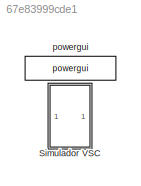
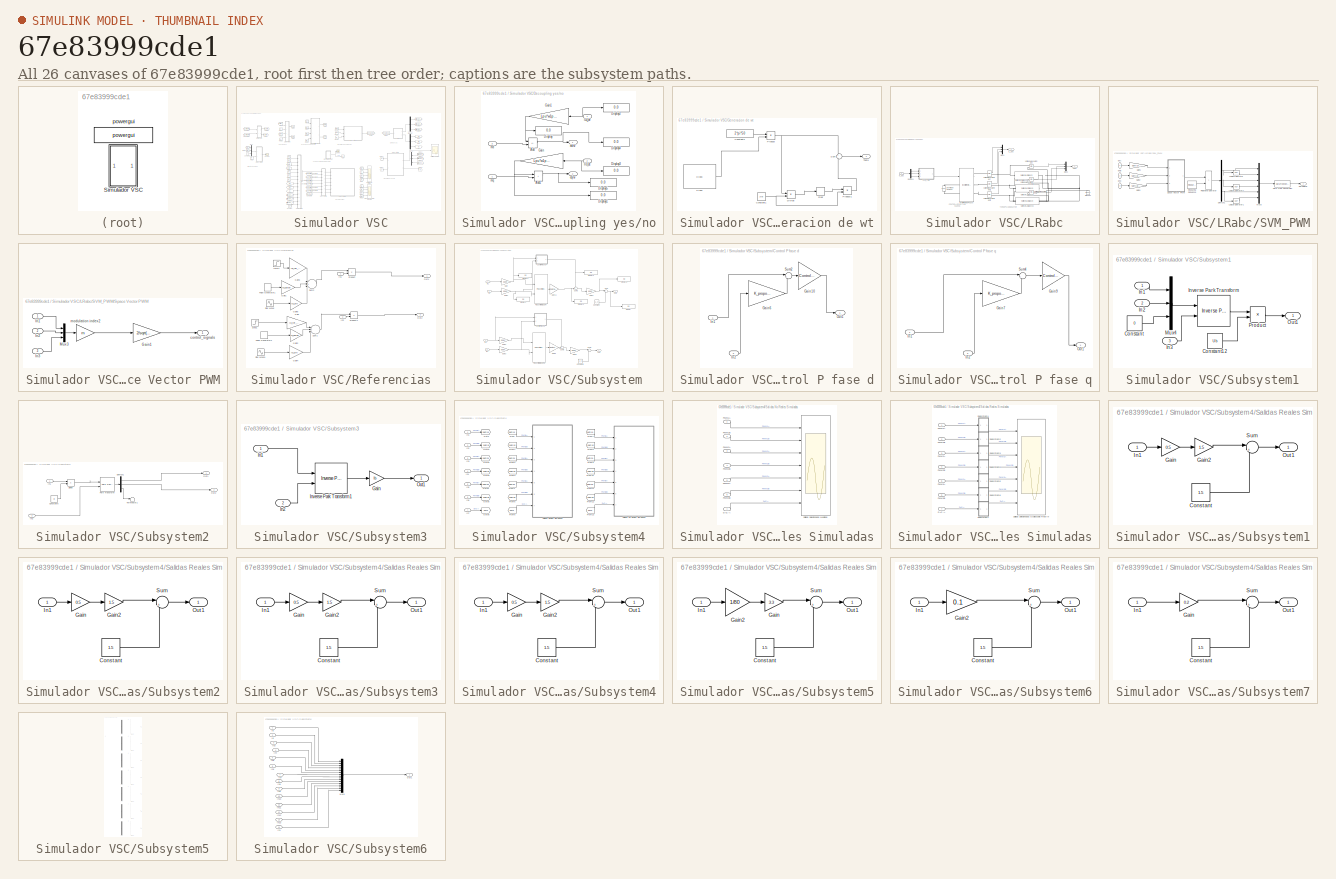
[diagram: thumbnail index - all 26 canvases of the model, root first then tree order]
MODEL slx_67e83999cde1
KIND model
CONFIG AbsTol = auto
CONFIG EnableMultiTasking = off
CONFIG FixedStep = 1e-6
CONFIG MaxStep = auto
CONFIG MinStep = auto
CONFIG RelTol = 1e-3
CONFIG SampleTimeConstraint = Unconstrained
CONFIG Solver = FixedStepAuto
CONFIG SolverName = FixedStepAuto
CONFIG StartTime = 0.0
CONFIG StopTime = 0.5
WORKSPACE source: mxarray member
WORKSPACE SELDACA = 0
WORKSPACE SELPWM1A = 0
WORKSPACE SELPWM1B = 0
WORKSPACE SELPWM2A = 0
WORKSPACE SELPWM2B = 0
WORKSPACE SELPWM3A = 0
WORKSPACE SELPWM3B = 0
WORKSPACE Salidas_Reales = 0
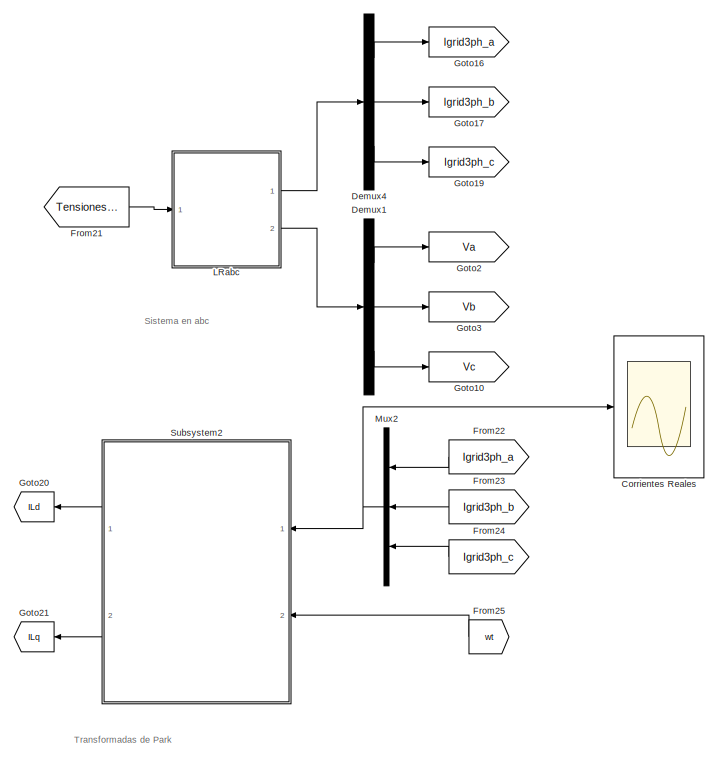
[diagram: Simulador VSC - part 1/4, middle right region]
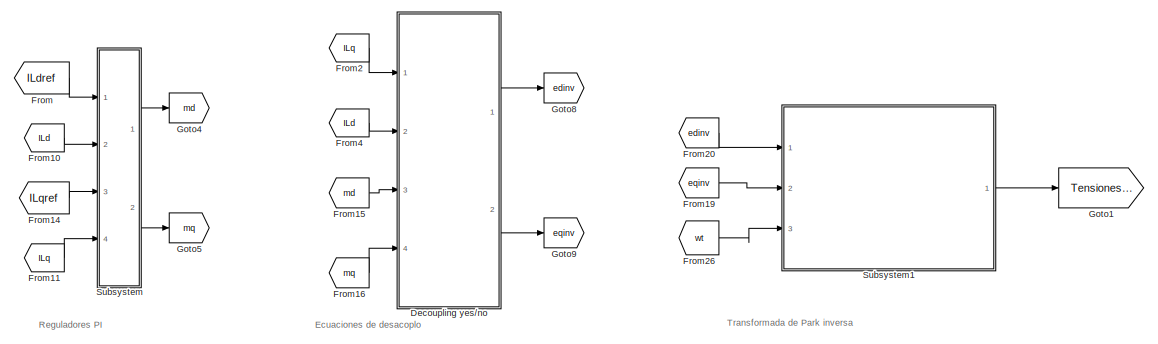
[diagram: Simulador VSC - part 2/4, top center region]
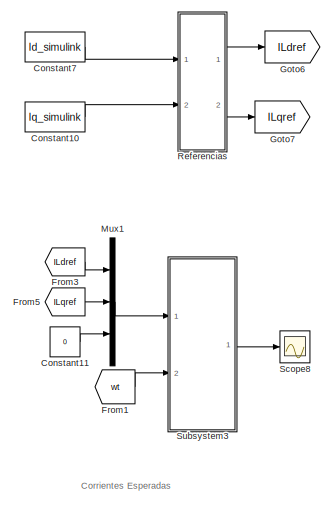
[diagram: Simulador VSC - part 3/4, middle left region]
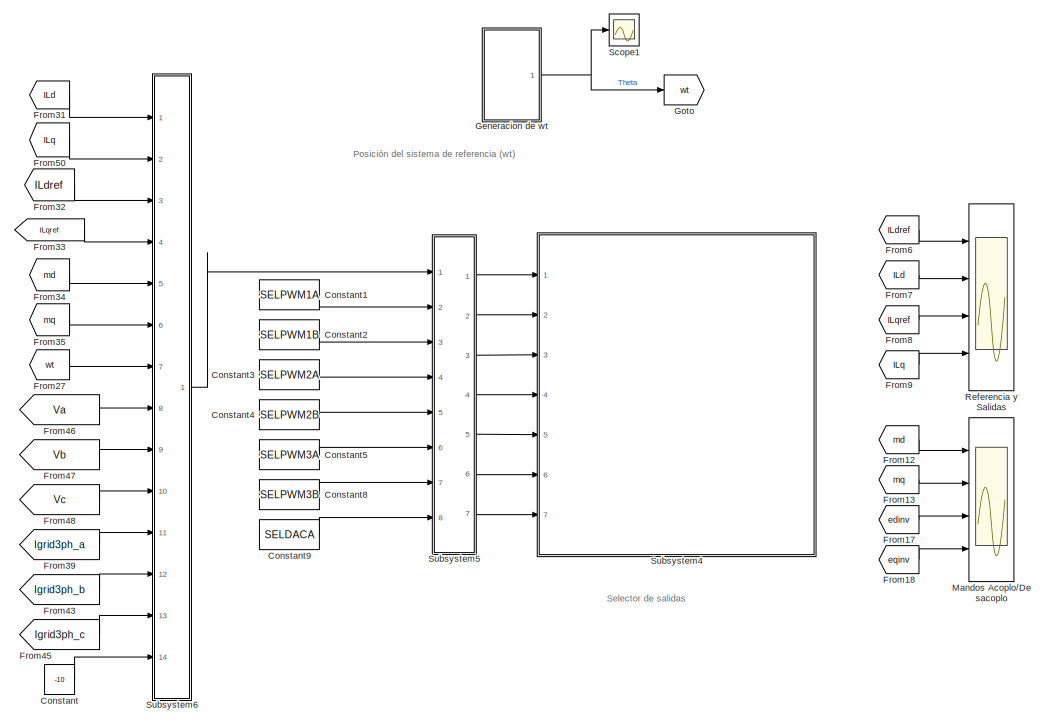
[diagram: Simulador VSC - part 4/4, bottom center region]
BLOCK [SubSystem] Simulador VSC
  Ports = []
  RequestExecContextInheritance = off
BLOCK [Constant] Simulador VSC/Constant
  Value = -10
BLOCK [Constant] Simulador VSC/Constant1
  SampleTime = -1
  Value = SELPWM1A
BLOCK [Constant] Simulador VSC/Constant10
  SampleTime = -1
  Value = Iq_simulink
BLOCK [Constant] Simulador VSC/Constant11
  Value = 0
BLOCK [Constant] Simulador VSC/Constant2
  SampleTime = -1
  Value = SELPWM1B
BLOCK [Constant] Simulador VSC/Constant3
  SampleTime = -1
  Value = SELPWM2A
BLOCK [Constant] Simulador VSC/Constant4
  SampleTime = -1
  Value = SELPWM2B
BLOCK [Constant] Simulador VSC/Constant5
  Value = SELPWM3A
BLOCK [Constant] Simulador VSC/Constant7
  SampleTime = -1
  Value = Id_simulink
BLOCK [Constant] Simulador VSC/Constant8
  SampleTime = -1
  Value = SELPWM3B
BLOCK [Constant] Simulador VSC/Constant9
  SampleTime = -1
  Value = SELDACA
BLOCK [Scope] Simulador VSC/Corrientes Reales
  Floating = off
  NumInputPorts = 1
  Ports = [1]
  ScopeSpecificationString = Simulink.scopes.TimeScopeBlockCfg('CurrentConfiguration', extmgr.ConfigurationSet(extmgr.Configuration('Core','General UI',true),extmgr.Configuration('Core','Source UI',true),extmgr.Configuration('Sources','WiredSimulink',true,'DataLoggingVariableName','ScopeData1'),extmgr.Configuration('Visuals','Time Domain',true,'SerializedDisplays',{struct('MinYLimReal','-0.37337','MaxYLimReal','0.38199','YLab...<+1422ch>
BLOCK [SubSystem] Simulador VSC/Decoupling yes//no
  Ports = [4, 2]
  RequestExecContextInheritance = off
BLOCK [Sum] Simulador VSC/Decoupling yes//no/Add
  IconShape = rectangular
  Inputs = -+
  Ports = [2, 1]
BLOCK [Sum] Simulador VSC/Decoupling yes//no/Add1
  IconShape = rectangular
  Ports = [2, 1]
BLOCK [Display] Simulador VSC/Decoupling yes//no/Display
  Decimation = 1
  Ports = [1]
BLOCK [Display] Simulador VSC/Decoupling yes//no/Display1
  Decimation = 1
  Ports = [1]
BLOCK [Display] Simulador VSC/Decoupling yes//no/Display2
  Decimation = 1
  Ports = [1]
BLOCK [Display] Simulador VSC/Decoupling yes//no/Display3
  Decimation = 1
  Ports = [1]
BLOCK [Display] Simulador VSC/Decoupling yes//no/Display4
  Decimation = 1
  Ports = [1]
BLOCK [Display] Simulador VSC/Decoupling yes//no/Display5
  Decimation = 1
  Ports = [1]
BLOCK [Gain] Simulador VSC/Decoupling yes//no/Gain
  Gain = Lpu*w1pu*open*open_Id
BLOCK [Gain] Simulador VSC/Decoupling yes//no/Gain1
  Gain = Lpu*w1pu*open*open_Iq
BLOCK [Inport] Simulador VSC/Decoupling yes//no/ILq_de
BLOCK [Inport] Simulador VSC/Decoupling yes//no/Ild_de
  Port = 2
BLOCK [Outport] Simulador VSC/Decoupling yes//no/edinv
  VectorParamsAs1DForOutWhenUnconnected = off
BLOCK [Outport] Simulador VSC/Decoupling yes//no/eqinv
  Port = 2
  VectorParamsAs1DForOutWhenUnconnected = off
BLOCK [Inport] Simulador VSC/Decoupling yes//no/md
  Port = 3
BLOCK [Inport] Simulador VSC/Decoupling yes//no/mq
  Port = 4
BLOCK [Demux] Simulador VSC/Demux1
  Outputs = 3
  Ports = [1, 3]
BLOCK [Demux] Simulador VSC/Demux4
  Outputs = 3
  Ports = [1, 3]
BLOCK [From] Simulador VSC/From
  GotoTag = ILdref
BLOCK [From] Simulador VSC/From1
  GotoTag = wt
BLOCK [From] Simulador VSC/From10
  GotoTag = ILd
BLOCK [From] Simulador VSC/From11
  GotoTag = ILq
BLOCK [From] Simulador VSC/From12
  GotoTag = md
BLOCK [From] Simulador VSC/From13
  GotoTag = mq
BLOCK [From] Simulador VSC/From14
  GotoTag = ILqref
BLOCK [From] Simulador VSC/From15
  GotoTag = md
BLOCK [From] Simulador VSC/From16
  GotoTag = mq
BLOCK [From] Simulador VSC/From17
  GotoTag = edinv
BLOCK [From] Simulador VSC/From18
  GotoTag = eqinv
BLOCK [From] Simulador VSC/From19
  GotoTag = eqinv
BLOCK [From] Simulador VSC/From2
  GotoTag = ILq
BLOCK [From] Simulador VSC/From20
  GotoTag = edinv
BLOCK [From] Simulador VSC/From21
  GotoTag = Tensiones_abc
BLOCK [From] Simulador VSC/From22
  GotoTag = Igrid3ph_a
BLOCK [From] Simulador VSC/From23
  GotoTag = Igrid3ph_b
BLOCK [From] Simulador VSC/From24
  GotoTag = Igrid3ph_c
BLOCK [From] Simulador VSC/From25
  GotoTag = wt
BLOCK [From] Simulador VSC/From26
  GotoTag = wt
BLOCK [From] Simulador VSC/From27
  GotoTag = wt
BLOCK [From] Simulador VSC/From3
  GotoTag = ILdref
BLOCK [From] Simulador VSC/From31
  GotoTag = ILd
BLOCK [From] Simulador VSC/From32
  GotoTag = ILdref
BLOCK [From] Simulador VSC/From33
  GotoTag = ILqref
BLOCK [From] Simulador VSC/From34
  GotoTag = md
BLOCK [From] Simulador VSC/From35
  GotoTag = mq
BLOCK [From] Simulador VSC/From39
  GotoTag = Igrid3ph_a
BLOCK [From] Simulador VSC/From4
  GotoTag = ILd
BLOCK [From] Simulador VSC/From43
  GotoTag = Igrid3ph_b
BLOCK [From] Simulador VSC/From45
  GotoTag = Igrid3ph_c
BLOCK [From] Simulador VSC/From46
  GotoTag = Va
BLOCK [From] Simulador VSC/From47
  GotoTag = Vb
BLOCK [From] Simulador VSC/From48
  GotoTag = Vc
BLOCK [From] Simulador VSC/From5
  GotoTag = ILqref
BLOCK [From] Simulador VSC/From50
  GotoTag = ILq
BLOCK [From] Simulador VSC/From6
  GotoTag = ILdref
  IconDisplay = Signal name
BLOCK [From] Simulador VSC/From7
  GotoTag = ILd
BLOCK [From] Simulador VSC/From8
  GotoTag = ILqref
BLOCK [From] Simulador VSC/From9
  GotoTag = ILq
BLOCK [SubSystem] Simulador VSC/Generacion de wt
  Ports = [0, 1]
  RequestExecContextInheritance = off
BLOCK [Clock] Simulador VSC/Generacion de wt/Clock
  Decimation = 1
  DisplayTime = on
BLOCK [Constant] Simulador VSC/Generacion de wt/Constant1
  Value = 2*pi
BLOCK [Constant] Simulador VSC/Generacion de wt/Constant2
  Value = 2*pi*50
BLOCK [Product] Simulador VSC/Generacion de wt/Divide
  Inputs = */
  Ports = [2, 1]
BLOCK [Rounding] Simulador VSC/Generacion de wt/Floor
BLOCK [Product] Simulador VSC/Generacion de wt/Product
  Ports = [2, 1]
BLOCK [Product] Simulador VSC/Generacion de wt/Product1
  Ports = [2, 1]
BLOCK [Sum] Simulador VSC/Generacion de wt/Sum
  Inputs = +-
  Ports = [2, 1]
BLOCK [Outport] Simulador VSC/Generacion de wt/Theta
  VectorParamsAs1DForOutWhenUnconnected = off
BLOCK [Goto] Simulador VSC/Goto
  GotoTag = wt
BLOCK [Goto] Simulador VSC/Goto1
  GotoTag = Tensiones_abc
BLOCK [Goto] Simulador VSC/Goto10
  GotoTag = Vc
BLOCK [Goto] Simulador VSC/Goto16
  GotoTag = Igrid3ph_a
BLOCK [Goto] Simulador VSC/Goto17
  GotoTag = Igrid3ph_b
BLOCK [Goto] Simulador VSC/Goto19
  GotoTag = Igrid3ph_c
BLOCK [Goto] Simulador VSC/Goto2
  GotoTag = Va
BLOCK [Goto] Simulador VSC/Goto20
  GotoTag = ILd
BLOCK [Goto] Simulador VSC/Goto21
  GotoTag = ILq
BLOCK [Goto] Simulador VSC/Goto3
  GotoTag = Vb
BLOCK [Goto] Simulador VSC/Goto4
  GotoTag = md
BLOCK [Goto] Simulador VSC/Goto5
  GotoTag = mq
BLOCK [Goto] Simulador VSC/Goto6
  GotoTag = ILdref
BLOCK [Goto] Simulador VSC/Goto7
  GotoTag = ILqref
BLOCK [Goto] Simulador VSC/Goto8
  GotoTag = edinv
BLOCK [Goto] Simulador VSC/Goto9
  GotoTag = eqinv
BLOCK [SubSystem] Simulador VSC/LRabc
  Ports = [1, 2]
  RequestExecContextInheritance = off
BLOCK [Reference] Simulador VSC/LRabc/Current Measurement  REF=powerlib/Measurements/Current Measurement
  Ports = [0, 1, 0, 0, 0, 1, 1]
  SourceBlock = powerlib/Measurements/Current Measurement
  SourceProductBaseCode = PS
  SourceType = Current Measurement
  UserDataPersistent = on
BLOCK [Reference] Simulador VSC/LRabc/Current Measurement1  REF=powerlib/Measurements/Current Measurement
  Ports = [0, 1, 0, 0, 0, 1, 1]
  SourceBlock = powerlib/Measurements/Current Measurement
  SourceProductBaseCode = PS
  SourceType = Current Measurement
  UserDataPersistent = on
BLOCK [Reference] Simulador VSC/LRabc/Current Measurement2  REF=powerlib/Measurements/Current Measurement
  Ports = [0, 1, 0, 0, 0, 1, 1]
  SourceBlock = powerlib/Measurements/Current Measurement
  SourceProductBaseCode = PS
  SourceType = Current Measurement
  UserDataPersistent = on
BLOCK [Reference] Simulador VSC/LRabc/DC Voltage Source2  REF=powerlib/Electrical
Sources/DC Voltage Source
  Ports = [0, 0, 0, 0, 0, 1, 1]
  SourceBlock = powerlib/Electrical\nSources/DC Voltage Source
  SourceProductBaseCode = PS
  SourceType = DC Voltage Source
BLOCK [Demux] Simulador VSC/LRabc/Demux1
  Outputs = 3
  Ports = [1, 3]
BLOCK [Reference] Simulador VSC/LRabc/Ground1  REF=powerlib/Elements/Ground
  Ports = [0, 0, 0, 0, 0, 1]
  SourceBlock = powerlib/Elements/Ground
  SourceProductBaseCode = PS
  SourceType = Ground
BLOCK [Reference] Simulador VSC/LRabc/Inverter (Three-Phase)  REF=electricdrivelib/Fundamental Drive Blocks/Inverter
(Three-Phase)
  AttributesFormatString = %<BlockChoice>
  Ports = [1, 0, 0, 0, 0, 2, 3]
  SourceBlock = electricdrivelib/Fundamental Drive Blocks/Inverter\n(Three-Phase)
  SourceProductBaseCode = PS
  SourceType = Inverter (Three-phase)
BLOCK [Mux] Simulador VSC/LRabc/Mux1
  DisplayOption = bar
  Inputs = 3
  Ports = [3, 1]
BLOCK [Mux] Simulador VSC/LRabc/Mux2
  DisplayOption = bar
  Inputs = 3
  Ports = [3, 1]
BLOCK [SubSystem] Simulador VSC/LRabc/SVM_PWM
  Ports = [3, 1]
  RequestExecContextInheritance = off
BLOCK [DataTypeConversion] Simulador VSC/LRabc/SVM_PWM/Data Type Conversion
  OutDataTypeStr = uint16
  RndMeth = Floor
  SaturateOnIntegerOverflow = off
BLOCK [Demux] Simulador VSC/LRabc/SVM_PWM/Demux1
  Outputs = 3
  Ports = [1, 3]
BLOCK [Gain] Simulador VSC/LRabc/SVM_PWM/Gain1
  Gain = sqrt(3)/Vdc
BLOCK [Gain] Simulador VSC/LRabc/SVM_PWM/Gain2
  Gain = sqrt(3)/Vdc
BLOCK [Gain] Simulador VSC/LRabc/SVM_PWM/Gain3
  Gain = sqrt(3)/Vdc
BLOCK [Outport] Simulador VSC/LRabc/SVM_PWM/GateSignal
  VectorParamsAs1DForOutWhenUnconnected = off
BLOCK [Logic] Simulador VSC/LRabc/SVM_PWM/Logical Operator
  AllPortsSameDT = off
  Operator = NOT
  OutDataTypeStr = boolean
  Ports = [1, 1]
BLOCK [Logic] Simulador VSC/LRabc/SVM_PWM/Logical Operator1
  AllPortsSameDT = off
  Operator = NOT
  OutDataTypeStr = boolean
  Ports = [1, 1]
BLOCK [Logic] Simulador VSC/LRabc/SVM_PWM/Logical Operator2
  AllPortsSameDT = off
  Operator = NOT
  OutDataTypeStr = boolean
  Ports = [1, 1]
BLOCK [Mux] Simulador VSC/LRabc/SVM_PWM/Mux3
  DisplayOption = bar
  Inputs = 6
  Ports = [6, 1]
BLOCK [RelationalOperator] Simulador VSC/LRabc/SVM_PWM/Relational Operator
  InputSameDT = off
  Operator = >
  Ports = [2, 1]
BLOCK [Reference] Simulador VSC/LRabc/SVM_PWM/Repeating Sequence  REF=simulink/Sources/Repeating
Sequence
  Ports = [0, 1]
  SourceBlock = simulink/Sources/Repeating\nSequence
  SourceProductBaseCode = SL
  SourceType = Repeating table
BLOCK [SubSystem] Simulador VSC/LRabc/SVM_PWM/Space Vector PWM
  Ports = [3, 1]
  RequestExecContextInheritance = off
BLOCK [Gain] Simulador VSC/LRabc/SVM_PWM/Space Vector PWM/Gain1
  Gain = 2/sqrt(3)
BLOCK [Inport] Simulador VSC/LRabc/SVM_PWM/Space Vector PWM/In1
BLOCK [Inport] Simulador VSC/LRabc/SVM_PWM/Space Vector PWM/In2
  Port = 2
BLOCK [Inport] Simulador VSC/LRabc/SVM_PWM/Space Vector PWM/In3
  Port = 3
BLOCK [Mux] Simulador VSC/LRabc/SVM_PWM/Space Vector PWM/Mux3
  DisplayOption = bar
  Inputs = 3
  Ports = [3, 1]
BLOCK [Outport] Simulador VSC/LRabc/SVM_PWM/Space Vector PWM/control_signals
  VectorParamsAs1DForOutWhenUnconnected = off
BLOCK [Gain] Simulador VSC/LRabc/SVM_PWM/Space Vector PWM/modulation index2
  Gain = m
  OutDataTypeStr = Inherit: Same as input
  ParamDataTypeStr = Inherit: Same as input
  SaturateOnIntegerOverflow = on
BLOCK [Inport] Simulador VSC/LRabc/SVM_PWM/phA
BLOCK [Inport] Simulador VSC/LRabc/SVM_PWM/phB
  Port = 2
BLOCK [Inport] Simulador VSC/LRabc/SVM_PWM/phC
  Port = 3
BLOCK [Reference] Simulador VSC/LRabc/Series RLC Branch  REF=powerlib/Elements/Series RLC Branch
  Ports = [0, 0, 0, 0, 0, 1, 1]
  SourceBlock = powerlib/Elements/Series RLC Branch
  SourceProductBaseCode = PS
  SourceType = Series RLC Branch
BLOCK [Reference] Simulador VSC/LRabc/Series RLC Branch1  REF=powerlib/Elements/Series RLC Branch
  Ports = [0, 0, 0, 0, 0, 1, 1]
  SourceBlock = powerlib/Elements/Series RLC Branch
  SourceProductBaseCode = PS
  SourceType = Series RLC Branch
BLOCK [Reference] Simulador VSC/LRabc/Series RLC Branch2  REF=powerlib/Elements/Series RLC Branch
  Ports = [0, 0, 0, 0, 0, 1, 1]
  SourceBlock = powerlib/Elements/Series RLC Branch
  SourceProductBaseCode = PS
  SourceType = Series RLC Branch
BLOCK [Outport] Simulador VSC/LRabc/Vabc
  Port = 2
  VectorParamsAs1DForOutWhenUnconnected = off
BLOCK [Reference] Simulador VSC/LRabc/Voltage Measurement  REF=powerlib/Measurements/Voltage Measurement
  Ports = [0, 1, 0, 0, 0, 2]
  SourceBlock = powerlib/Measurements/Voltage Measurement
  SourceProductBaseCode = PS
  SourceType = Voltage Measurement
  UserDataPersistent = on
BLOCK [Reference] Simulador VSC/LRabc/Voltage Measurement1  REF=powerlib/Measurements/Voltage Measurement
  Ports = [0, 1, 0, 0, 0, 2]
  SourceBlock = powerlib/Measurements/Voltage Measurement
  SourceProductBaseCode = PS
  SourceType = Voltage Measurement
  UserDataPersistent = on
BLOCK [Reference] Simulador VSC/LRabc/Voltage Measurement2  REF=powerlib/Measurements/Voltage Measurement
  Ports = [0, 1, 0, 0, 0, 2]
  SourceBlock = powerlib/Measurements/Voltage Measurement
  SourceProductBaseCode = PS
  SourceType = Voltage Measurement
  UserDataPersistent = on
BLOCK [Inport] Simulador VSC/LRabc/e_abc
BLOCK [Outport] Simulador VSC/LRabc/iL_abc
  VectorParamsAs1DForOutWhenUnconnected = off
BLOCK [Scope] Simulador VSC/Mandos Acoplo//Desacoplo
  Floating = off
  NumInputPorts = 4
  Ports = [4]
  ScopeSpecificationString = Simulink.scopes.TimeScopeBlockCfg('CurrentConfiguration', extmgr.ConfigurationSet(extmgr.Configuration('Core','General UI',true),extmgr.Configuration('Core','Source UI',true),extmgr.Configuration('Sources','WiredSimulink',true,'DataLoggingVariableName','ScopeData8'),extmgr.Configuration('Visuals','Time Domain',true,'SerializedDisplays',{struct('MinYLimReal','-0.48375','MaxYLimReal','4.35377','YLab...<+3837ch>
BLOCK [Mux] Simulador VSC/Mux1
  DisplayOption = bar
  Inputs = 3
  Ports = [3, 1]
BLOCK [Mux] Simulador VSC/Mux2
  DisplayOption = bar
  Inputs = 3
  Ports = [3, 1]
BLOCK [Scope] Simulador VSC/Referencia y Salidas
  Floating = off
  NumInputPorts = 4
  Ports = [4]
  ScopeSpecificationString = Simulink.scopes.TimeScopeBlockCfg('CurrentConfiguration', extmgr.ConfigurationSet(extmgr.Configuration('Core','General UI',true),extmgr.Configuration('Core','Source UI',true),extmgr.Configuration('Sources','WiredSimulink',true,'DataLoggingVariableName','ScopeData7','DataLoggingLimitDataPoints',true,'DataLoggingMaxPoints','450000','DataLoggingDecimateData',true),extmgr.Configuration('Visuals','Time...<+4091ch>
BLOCK [SubSystem] Simulador VSC/Referencias
  Ports = [2, 2]
  RequestExecContextInheritance = off
BLOCK [Gain] Simulador VSC/Referencias/Gain
  Gain = Iq_ref_const
BLOCK [Gain] Simulador VSC/Referencias/Gain1
  Gain = Id_pulse
BLOCK [Gain] Simulador VSC/Referencias/Gain2
  Gain = Iq_pulse
BLOCK [Gain] Simulador VSC/Referencias/Gain3
  Gain = Id_ref_const
BLOCK [Gain] Simulador VSC/Referencias/Gain4
  Gain = Iq_sin
BLOCK [Gain] Simulador VSC/Referencias/Gain5
  Gain = Id_sin
BLOCK [Step] Simulador VSC/Referencias/Idref2
  Time = 0.05
BLOCK [Inport] Simulador VSC/Referencias/In1
BLOCK [Inport] Simulador VSC/Referencias/In2
  Port = 2
BLOCK [Outport] Simulador VSC/Referencias/Out1
  VectorParamsAs1DForOutWhenUnconnected = off
BLOCK [Outport] Simulador VSC/Referencias/Out2
  Port = 2
  VectorParamsAs1DForOutWhenUnconnected = off
BLOCK [Product] Simulador VSC/Referencias/Product
  Ports = [2, 1]
BLOCK [Product] Simulador VSC/Referencias/Product1
  Ports = [2, 1]
BLOCK [DiscretePulseGenerator] Simulador VSC/Referencias/Pulse Generator1
  Period = 100000
  Ports = [0, 1]
  PulseWidth = 100000*0.5
  SampleTime = T_pwm
  VectorParams1D = off
BLOCK [DiscretePulseGenerator] Simulador VSC/Referencias/Pulse Generator2
  Period = 100000
  PhaseDelay = 100000*0.3
  Ports = [0, 1]
  PulseWidth = 100000*0.5
  SampleTime = T_pwm
  VectorParams1D = off
BLOCK [Sin] Simulador VSC/Referencias/Sine Wave
  Ports = [0, 1]
  SampleTime = T_pwm
  Samples = 10000
  SineType = Sample based
BLOCK [Sin] Simulador VSC/Referencias/Sine Wave1
  Ports = [0, 1]
  SampleTime = T_pwm
  Samples = 10000
  SineType = Sample based
BLOCK [Step] Simulador VSC/Referencias/Step1
  Time = 0.25
BLOCK [Sum] Simulador VSC/Referencias/Sum1
  Inputs = |+|+|+|
  Ports = [3, 1]
BLOCK [Sum] Simulador VSC/Referencias/Sum2
  Inputs = |+|+|+|
  Ports = [3, 1]
BLOCK [Scope] Simulador VSC/Scope1
  Floating = off
  NumInputPorts = 1
  Ports = [1]
  ScopeSpecificationString = Simulink.scopes.TimeScopeBlockCfg('CurrentConfiguration', extmgr.ConfigurationSet(extmgr.Configuration('Core','General UI',true),extmgr.Configuration('Core','Source UI',true),extmgr.Configuration('Sources','WiredSimulink',true,'DataLoggingVariableName','ScopeData3'),extmgr.Configuration('Visuals','Time Domain',true,'SerializedDisplays',{struct('MinYLimReal','-0.4957','MaxYLimReal','6.62867','YLabe...<+1380ch>
BLOCK [Scope] Simulador VSC/Scope8
  Floating = off
  NumInputPorts = 1
  Ports = [1]
  ScopeSpecificationString = Simulink.scopes.TimeScopeBlockCfg('CurrentConfiguration', extmgr.ConfigurationSet(extmgr.Configuration('Core','General UI',true),extmgr.Configuration('Core','Source UI',true),extmgr.Configuration('Sources','WiredSimulink',true,'DataLoggingVariableName','ScopeData14'),extmgr.Configuration('Visuals','Time Domain',true,'SerializedDisplays',{struct('MinYLimReal','-2.55155','MaxYLimReal','2.55155','YLa...<+1435ch>
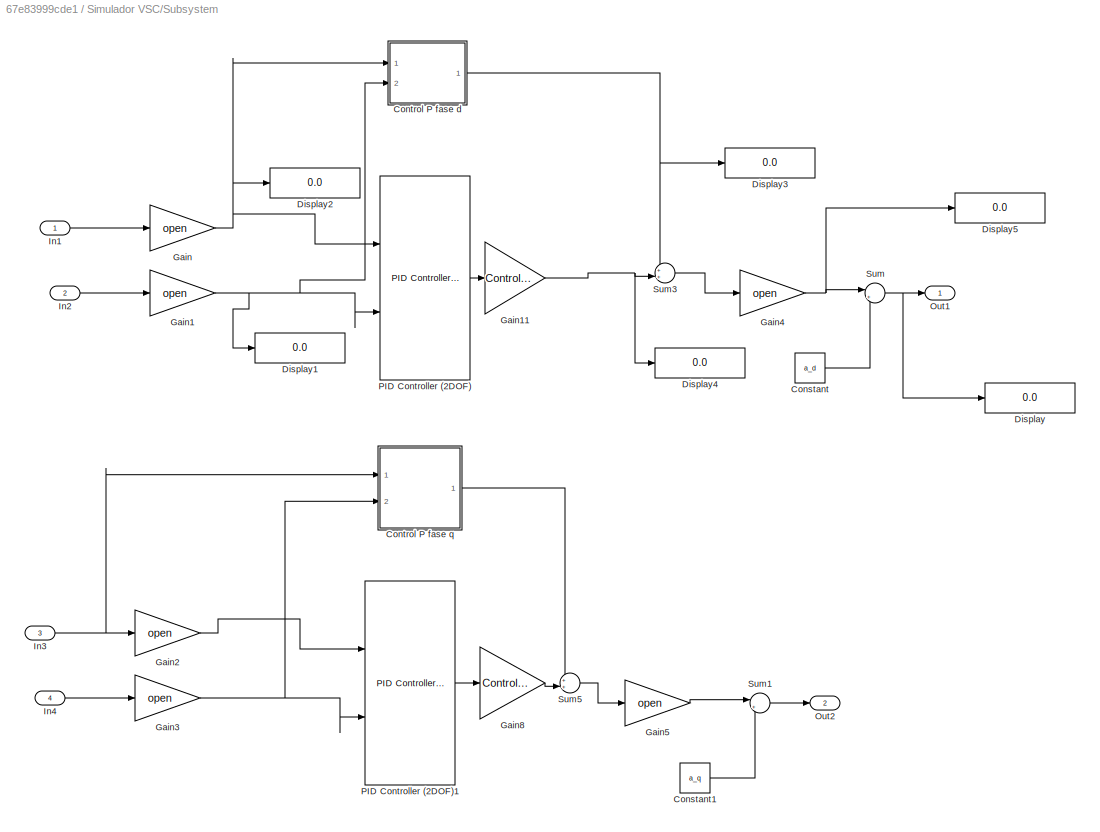
BLOCK [SubSystem] Simulador VSC/Subsystem
  Ports = [4, 2]
  RequestExecContextInheritance = off
BLOCK [Constant] Simulador VSC/Subsystem/Constant
  Value = a_d
BLOCK [Constant] Simulador VSC/Subsystem/Constant1
  Value = a_q
BLOCK [SubSystem] Simulador VSC/Subsystem/Control P fase d
  Ports = [2, 1]
  RequestExecContextInheritance = off
BLOCK [Gain] Simulador VSC/Subsystem/Control P fase d/Gain10
  Gain = Control_P
BLOCK [Gain] Simulador VSC/Subsystem/Control P fase d/Gain6
  Gain = K_proporcional
BLOCK [Inport] Simulador VSC/Subsystem/Control P fase d/In1
BLOCK [Inport] Simulador VSC/Subsystem/Control P fase d/In2
  Port = 2
BLOCK [Outport] Simulador VSC/Subsystem/Control P fase d/Out1
  VectorParamsAs1DForOutWhenUnconnected = off
BLOCK [Sum] Simulador VSC/Subsystem/Control P fase d/Sum2
  Inputs = |+-
  Ports = [2, 1]
BLOCK [SubSystem] Simulador VSC/Subsystem/Control P fase q
  Ports = [2, 1]
  RequestExecContextInheritance = off
BLOCK [Gain] Simulador VSC/Subsystem/Control P fase q/Gain7
  Gain = K_proporcional
BLOCK [Gain] Simulador VSC/Subsystem/Control P fase q/Gain9
  Gain = Control_P
BLOCK [Inport] Simulador VSC/Subsystem/Control P fase q/In1
BLOCK [Inport] Simulador VSC/Subsystem/Control P fase q/In2
  Port = 2
BLOCK [Outport] Simulador VSC/Subsystem/Control P fase q/Out1
  VectorParamsAs1DForOutWhenUnconnected = off
BLOCK [Sum] Simulador VSC/Subsystem/Control P fase q/Sum4
  Inputs = |+-
  Ports = [2, 1]
BLOCK [Display] Simulador VSC/Subsystem/Display
  Decimation = 1
  Ports = [1]
BLOCK [Display] Simulador VSC/Subsystem/Display1
  Decimation = 1
  Ports = [1]
BLOCK [Display] Simulador VSC/Subsystem/Display2
  Decimation = 1
  Ports = [1]
BLOCK [Display] Simulador VSC/Subsystem/Display3
  Decimation = 1
  Ports = [1]
BLOCK [Display] Simulador VSC/Subsystem/Display4
  Decimation = 1
  Ports = [1]
BLOCK [Display] Simulador VSC/Subsystem/Display5
  Decimation = 1
  Ports = [1]
BLOCK [Gain] Simulador VSC/Subsystem/Gain
  Gain = open
BLOCK [Gain] Simulador VSC/Subsystem/Gain1
  Gain = open
BLOCK [Gain] Simulador VSC/Subsystem/Gain11
  Gain = Control_PI
BLOCK [Gain] Simulador VSC/Subsystem/Gain2
  Gain = open
BLOCK [Gain] Simulador VSC/Subsystem/Gain3
  Gain = open
BLOCK [Gain] Simulador VSC/Subsystem/Gain4
  Gain = open
BLOCK [Gain] Simulador VSC/Subsystem/Gain5
  Gain = open
BLOCK [Gain] Simulador VSC/Subsystem/Gain8
  Gain = Control_PI
BLOCK [Inport] Simulador VSC/Subsystem/In1
BLOCK [Inport] Simulador VSC/Subsystem/In2
  Port = 2
BLOCK [Inport] Simulador VSC/Subsystem/In3
  Port = 3
BLOCK [Inport] Simulador VSC/Subsystem/In4
  Port = 4
BLOCK [Outport] Simulador VSC/Subsystem/Out1
  VectorParamsAs1DForOutWhenUnconnected = off
BLOCK [Outport] Simulador VSC/Subsystem/Out2
  Port = 2
  VectorParamsAs1DForOutWhenUnconnected = off
BLOCK [Reference] Simulador VSC/Subsystem/PID Controller (2DOF)  REF=simulink/Continuous/PID Controller (2DOF)
  Ports = [2, 1]
  SourceBlock = simulink/Continuous/PID Controller (2DOF)
  SourceProductBaseCode = SL
  SourceType = PID 2dof
BLOCK [Reference] Simulador VSC/Subsystem/PID Controller (2DOF)1  REF=simulink/Continuous/PID Controller (2DOF)
  Ports = [2, 1]
  SourceBlock = simulink/Continuous/PID Controller (2DOF)
  SourceProductBaseCode = SL
  SourceType = PID 2dof
BLOCK [Sum] Simulador VSC/Subsystem/Sum
  Inputs = |++
  Ports = [2, 1]
BLOCK [Sum] Simulador VSC/Subsystem/Sum1
  Inputs = |++
  Ports = [2, 1]
BLOCK [Sum] Simulador VSC/Subsystem/Sum3
  Inputs = ++|
  Ports = [2, 1]
BLOCK [Sum] Simulador VSC/Subsystem/Sum5
  Inputs = ++|
  Ports = [2, 1]
BLOCK [SubSystem] Simulador VSC/Subsystem1
  Ports = [3, 1]
  RequestExecContextInheritance = off
BLOCK [Constant] Simulador VSC/Subsystem1/Constant
  Value = 0
BLOCK [Constant] Simulador VSC/Subsystem1/Constant12
  Value = Ub
BLOCK [Inport] Simulador VSC/Subsystem1/In1
BLOCK [Inport] Simulador VSC/Subsystem1/In2
  Port = 2
BLOCK [Inport] Simulador VSC/Subsystem1/In3
  Port = 3
BLOCK [Reference] Simulador VSC/Subsystem1/Inverse Park Transform  REF=eeTransforms/Inverse
Park Transform
  Ports = [2, 1]
  SourceBlock = eeTransforms/Inverse\nPark Transform
  SourceProductBaseCode = PS
  SourceType = Inverse Park Transform
BLOCK [Mux] Simulador VSC/Subsystem1/Mux4
  DisplayOption = bar
  Inputs = 3
  Ports = [3, 1]
BLOCK [Outport] Simulador VSC/Subsystem1/Out1
  VectorParamsAs1DForOutWhenUnconnected = off
BLOCK [Product] Simulador VSC/Subsystem1/Product
  Ports = [2, 1]
BLOCK [SubSystem] Simulador VSC/Subsystem2
  Ports = [2, 2]
  RequestExecContextInheritance = off
BLOCK [Constant] Simulador VSC/Subsystem2/Constant6
  Value = Ib
BLOCK [Demux] Simulador VSC/Subsystem2/Demux1
  Outputs = 3
  Ports = [1, 3]
BLOCK [Product] Simulador VSC/Subsystem2/Divide
  Inputs = */
  Ports = [2, 1]
BLOCK [Inport] Simulador VSC/Subsystem2/In1
BLOCK [Inport] Simulador VSC/Subsystem2/In2
  Port = 2
BLOCK [Outport] Simulador VSC/Subsystem2/Out1
  VectorParamsAs1DForOutWhenUnconnected = off
BLOCK [Outport] Simulador VSC/Subsystem2/Out2
  Port = 2
  VectorParamsAs1DForOutWhenUnconnected = off
BLOCK [Reference] Simulador VSC/Subsystem2/Park Transform  REF=eeTransforms/Park Transform
  Ports = [2, 1]
  SourceBlock = eeTransforms/Park Transform
  SourceProductBaseCode = PS
  SourceType = Park Transform
BLOCK [Terminator] Simulador VSC/Subsystem2/Terminator1
BLOCK [SubSystem] Simulador VSC/Subsystem3
  Ports = [2, 1]
  RequestExecContextInheritance = off
BLOCK [Gain] Simulador VSC/Subsystem3/Gain
  Gain = Ib
BLOCK [Inport] Simulador VSC/Subsystem3/In1
BLOCK [Inport] Simulador VSC/Subsystem3/In2
  Port = 2
BLOCK [Reference] Simulador VSC/Subsystem3/Inverse Park Transform1  REF=eeTransforms/Inverse
Park Transform
  Ports = [2, 1]
  SourceBlock = eeTransforms/Inverse\nPark Transform
  SourceProductBaseCode = PS
  SourceType = Inverse Park Transform
BLOCK [Outport] Simulador VSC/Subsystem3/Out1
  VectorParamsAs1DForOutWhenUnconnected = off
BLOCK [SubSystem] Simulador VSC/Subsystem4
  Ports = [7]
  RequestExecContextInheritance = off
BLOCK [From] Simulador VSC/Subsystem4/From
  GotoTag = pwm1a
BLOCK [From] Simulador VSC/Subsystem4/From1
  GotoTag = pwm1b
BLOCK [From] Simulador VSC/Subsystem4/From10
  GotoTag = pwm2b
BLOCK [From] Simulador VSC/Subsystem4/From11
  GotoTag = pwm3a
BLOCK [From] Simulador VSC/Subsystem4/From12
  GotoTag = pwm3b
BLOCK [From] Simulador VSC/Subsystem4/From13
  GotoTag = daca
BLOCK [From] Simulador VSC/Subsystem4/From2
  GotoTag = pwm2a
BLOCK [From] Simulador VSC/Subsystem4/From3
  GotoTag = pwm2b
BLOCK [From] Simulador VSC/Subsystem4/From4
  GotoTag = pwm3a
BLOCK [From] Simulador VSC/Subsystem4/From5
  GotoTag = pwm3b
BLOCK [From] Simulador VSC/Subsystem4/From6
  GotoTag = daca
BLOCK [From] Simulador VSC/Subsystem4/From7
  GotoTag = pwm1a
BLOCK [From] Simulador VSC/Subsystem4/From8
  GotoTag = pwm1b
BLOCK [From] Simulador VSC/Subsystem4/From9
  GotoTag = pwm2a
BLOCK [Goto] Simulador VSC/Subsystem4/Goto
  GotoTag = pwm1a
BLOCK [Goto] Simulador VSC/Subsystem4/Goto1
  GotoTag = pwm1b
BLOCK [Goto] Simulador VSC/Subsystem4/Goto2
  GotoTag = pwm2a
BLOCK [Goto] Simulador VSC/Subsystem4/Goto3
  GotoTag = pwm2b
BLOCK [Goto] Simulador VSC/Subsystem4/Goto4
  GotoTag = pwm3a
BLOCK [Goto] Simulador VSC/Subsystem4/Goto5
  GotoTag = pwm3b
BLOCK [Goto] Simulador VSC/Subsystem4/Goto6
  GotoTag = daca
BLOCK [Inport] Simulador VSC/Subsystem4/In1
BLOCK [Inport] Simulador VSC/Subsystem4/In2
  Port = 2
BLOCK [Inport] Simulador VSC/Subsystem4/In3
  Port = 3
BLOCK [Inport] Simulador VSC/Subsystem4/In4
  Port = 4
BLOCK [Inport] Simulador VSC/Subsystem4/In5
  Port = 5
BLOCK [Inport] Simulador VSC/Subsystem4/In6
  Port = 6
BLOCK [Inport] Simulador VSC/Subsystem4/In7
  Port = 7
BLOCK [SubSystem] Simulador VSC/Subsystem4/Salidas No Reales Simuladas
  Ports = [7]
  RequestExecContextInheritance = off
BLOCK [Inport] Simulador VSC/Subsystem4/Salidas No Reales Simuladas/DAC-A
  Port = 7
BLOCK [Inport] Simulador VSC/Subsystem4/Salidas No Reales Simuladas/PWM1A
BLOCK [Inport] Simulador VSC/Subsystem4/Salidas No Reales Simuladas/PWM1B
  Port = 2
BLOCK [Inport] Simulador VSC/Subsystem4/Salidas No Reales Simuladas/PWM2A
  Port = 3
BLOCK [Inport] Simulador VSC/Subsystem4/Salidas No Reales Simuladas/PWM2B
  Port = 4
BLOCK [Inport] Simulador VSC/Subsystem4/Salidas No Reales Simuladas/PWM3A
  Port = 5
BLOCK [Inport] Simulador VSC/Subsystem4/Salidas No Reales Simuladas/PWM3B
  Port = 6
BLOCK [Scope] Simulador VSC/Subsystem4/Salidas No Reales Simuladas/Salidas Selecionadas Medidas 
  Floating = off
  NumInputPorts = 7
  Ports = [7]
  ScopeSpecificationString = Simulink.scopes.TimeScopeBlockCfg('CurrentConfiguration', extmgr.ConfigurationSet(extmgr.Configuration('Core','General UI',true),extmgr.Configuration('Core','Source UI',true),extmgr.Configuration('Sources','WiredSimulink',true,'DataLoggingVariableName','ScopeData2'),extmgr.Configuration('Visuals','Time Domain',true,'InputProcessing','FrameProcessing','SerializedDisplays',{struct('MinYLimReal','-0....<+6508ch>
BLOCK [SubSystem] Simulador VSC/Subsystem4/Salidas Reales Simuladas
  Ports = [7]
  RequestExecContextInheritance = off
BLOCK [Inport] Simulador VSC/Subsystem4/Salidas Reales Simuladas/DAC-A
  Port = 7
BLOCK [Inport] Simulador VSC/Subsystem4/Salidas Reales Simuladas/PWM1A
BLOCK [Inport] Simulador VSC/Subsystem4/Salidas Reales Simuladas/PWM1B
  Port = 2
BLOCK [Inport] Simulador VSC/Subsystem4/Salidas Reales Simuladas/PWM2A
  Port = 3
BLOCK [Inport] Simulador VSC/Subsystem4/Salidas Reales Simuladas/PWM2B
  Port = 4
BLOCK [Inport] Simulador VSC/Subsystem4/Salidas Reales Simuladas/PWM3A
  Port = 5
BLOCK [Inport] Simulador VSC/Subsystem4/Salidas Reales Simuladas/PWM3B
  Port = 6
BLOCK [Scope] Simulador VSC/Subsystem4/Salidas Reales Simuladas/Salidas Selecionadas Osciloscopio Real (V)
  Floating = off
  NumInputPorts = 7
  Ports = [7]
  ScopeSpecificationString = Simulink.scopes.TimeScopeBlockCfg('CurrentConfiguration', extmgr.ConfigurationSet(extmgr.Configuration('Core','General UI',true),extmgr.Configuration('Core','Source UI',true),extmgr.Configuration('Sources','WiredSimulink',true,'DataLoggingVariableName','ScopeData2'),extmgr.Configuration('Visuals','Time Domain',true,'InputProcessing','FrameProcessing','SerializedDisplays',{struct('MinYLimReal','1.3...<+6506ch>
BLOCK [SubSystem] Simulador VSC/Subsystem4/Salidas Reales Simuladas/Subsystem1
  Ports = [1, 1]
  RequestExecContextInheritance = off
BLOCK [Constant] Simulador VSC/Subsystem4/Salidas Reales Simuladas/Subsystem1/Constant
  Value = 1.5
BLOCK [Gain] Simulador VSC/Subsystem4/Salidas Reales Simuladas/Subsystem1/Gain
  Gain = 0.5
BLOCK [Gain] Simulador VSC/Subsystem4/Salidas Reales Simuladas/Subsystem1/Gain2
  Gain = 1.5
BLOCK [Inport] Simulador VSC/Subsystem4/Salidas Reales Simuladas/Subsystem1/In1
BLOCK [Outport] Simulador VSC/Subsystem4/Salidas Reales Simuladas/Subsystem1/Out1
  VectorParamsAs1DForOutWhenUnconnected = off
BLOCK [Sum] Simulador VSC/Subsystem4/Salidas Reales Simuladas/Subsystem1/Sum
  Inputs = |++
  Ports = [2, 1]
BLOCK [SubSystem] Simulador VSC/Subsystem4/Salidas Reales Simuladas/Subsystem2
  Ports = [1, 1]
  RequestExecContextInheritance = off
BLOCK [Constant] Simulador VSC/Subsystem4/Salidas Reales Simuladas/Subsystem2/Constant
  Value = 1.5
BLOCK [Gain] Simulador VSC/Subsystem4/Salidas Reales Simuladas/Subsystem2/Gain
  Gain = 0.5
BLOCK [Gain] Simulador VSC/Subsystem4/Salidas Reales Simuladas/Subsystem2/Gain2
  Gain = 1.5
BLOCK [Inport] Simulador VSC/Subsystem4/Salidas Reales Simuladas/Subsystem2/In1
BLOCK [Outport] Simulador VSC/Subsystem4/Salidas Reales Simuladas/Subsystem2/Out1
  VectorParamsAs1DForOutWhenUnconnected = off
BLOCK [Sum] Simulador VSC/Subsystem4/Salidas Reales Simuladas/Subsystem2/Sum
  Inputs = |++
  Ports = [2, 1]
BLOCK [SubSystem] Simulador VSC/Subsystem4/Salidas Reales Simuladas/Subsystem3
  Ports = [1, 1]
  RequestExecContextInheritance = off
BLOCK [Constant] Simulador VSC/Subsystem4/Salidas Reales Simuladas/Subsystem3/Constant
  Value = 1.5
BLOCK [Gain] Simulador VSC/Subsystem4/Salidas Reales Simuladas/Subsystem3/Gain
  Gain = 0.5
BLOCK [Gain] Simulador VSC/Subsystem4/Salidas Reales Simuladas/Subsystem3/Gain2
  Gain = 1.5
BLOCK [Inport] Simulador VSC/Subsystem4/Salidas Reales Simuladas/Subsystem3/In1
BLOCK [Outport] Simulador VSC/Subsystem4/Salidas Reales Simuladas/Subsystem3/Out1
  VectorParamsAs1DForOutWhenUnconnected = off
BLOCK [Sum] Simulador VSC/Subsystem4/Salidas Reales Simuladas/Subsystem3/Sum
  Inputs = |++
  Ports = [2, 1]
BLOCK [SubSystem] Simulador VSC/Subsystem4/Salidas Reales Simuladas/Subsystem4
  Ports = [1, 1]
  RequestExecContextInheritance = off
BLOCK [Constant] Simulador VSC/Subsystem4/Salidas Reales Simuladas/Subsystem4/Constant
  Value = 1.5
BLOCK [Gain] Simulador VSC/Subsystem4/Salidas Reales Simuladas/Subsystem4/Gain
  Gain = 0.5
BLOCK [Gain] Simulador VSC/Subsystem4/Salidas Reales Simuladas/Subsystem4/Gain2
  Gain = 1.5
BLOCK [Inport] Simulador VSC/Subsystem4/Salidas Reales Simuladas/Subsystem4/In1
BLOCK [Outport] Simulador VSC/Subsystem4/Salidas Reales Simuladas/Subsystem4/Out1
  VectorParamsAs1DForOutWhenUnconnected = off
BLOCK [Sum] Simulador VSC/Subsystem4/Salidas Reales Simuladas/Subsystem4/Sum
  Inputs = |++
  Ports = [2, 1]
BLOCK [SubSystem] Simulador VSC/Subsystem4/Salidas Reales Simuladas/Subsystem5
  Ports = [1, 1]
  RequestExecContextInheritance = off
BLOCK [Constant] Simulador VSC/Subsystem4/Salidas Reales Simuladas/Subsystem5/Constant
  Value = 1.5
BLOCK [Gain] Simulador VSC/Subsystem4/Salidas Reales Simuladas/Subsystem5/Gain
  Gain = 3.3
BLOCK [Gain] Simulador VSC/Subsystem4/Salidas Reales Simuladas/Subsystem5/Gain2
  Gain = 1/80
BLOCK [Inport] Simulador VSC/Subsystem4/Salidas Reales Simuladas/Subsystem5/In1
BLOCK [Outport] Simulador VSC/Subsystem4/Salidas Reales Simuladas/Subsystem5/Out1
  VectorParamsAs1DForOutWhenUnconnected = off
BLOCK [Sum] Simulador VSC/Subsystem4/Salidas Reales Simuladas/Subsystem5/Sum
  Inputs = |++
  Ports = [2, 1]
BLOCK [SubSystem] Simulador VSC/Subsystem4/Salidas Reales Simuladas/Subsystem6
  Ports = [1, 1]
  RequestExecContextInheritance = off
BLOCK [Constant] Simulador VSC/Subsystem4/Salidas Reales Simuladas/Subsystem6/Constant
  Value = 1.5
BLOCK [Gain] Simulador VSC/Subsystem4/Salidas Reales Simuladas/Subsystem6/Gain2
  Gain = 0.1
BLOCK [Inport] Simulador VSC/Subsystem4/Salidas Reales Simuladas/Subsystem6/In1
BLOCK [Outport] Simulador VSC/Subsystem4/Salidas Reales Simuladas/Subsystem6/Out1
  VectorParamsAs1DForOutWhenUnconnected = off
BLOCK [Sum] Simulador VSC/Subsystem4/Salidas Reales Simuladas/Subsystem6/Sum
  Inputs = |++
  Ports = [2, 1]
BLOCK [SubSystem] Simulador VSC/Subsystem4/Salidas Reales Simuladas/Subsystem7
  Ports = [1, 1]
  RequestExecContextInheritance = off
BLOCK [Constant] Simulador VSC/Subsystem4/Salidas Reales Simuladas/Subsystem7/Constant
  Value = 1.5
BLOCK [Gain] Simulador VSC/Subsystem4/Salidas Reales Simuladas/Subsystem7/Gain
  Gain = 0.2
BLOCK [Inport] Simulador VSC/Subsystem4/Salidas Reales Simuladas/Subsystem7/In1
BLOCK [Outport] Simulador VSC/Subsystem4/Salidas Reales Simuladas/Subsystem7/Out1
  VectorParamsAs1DForOutWhenUnconnected = off
BLOCK [Sum] Simulador VSC/Subsystem4/Salidas Reales Simuladas/Subsystem7/Sum
  Inputs = |++
  Ports = [2, 1]
BLOCK [SubSystem] Simulador VSC/Subsystem5
  Ports = [8, 7]
  RequestExecContextInheritance = off
BLOCK [Demux] Simulador VSC/Subsystem5/Demux1
  Outputs = 14
  Ports = [1, 14]
BLOCK [Demux] Simulador VSC/Subsystem5/Demux2
  Outputs = 14
  Ports = [1, 14]
BLOCK [Demux] Simulador VSC/Subsystem5/Demux3
  Outputs = 14
  Ports = [1, 14]
BLOCK [Demux] Simulador VSC/Subsystem5/Demux4
  Outputs = 14
  Ports = [1, 14]
BLOCK [Demux] Simulador VSC/Subsystem5/Demux5
  Outputs = 14
  Ports = [1, 14]
BLOCK [Demux] Simulador VSC/Subsystem5/Demux6
  Outputs = 14
  Ports = [1, 14]
BLOCK [Demux] Simulador VSC/Subsystem5/Demux7
  Outputs = 14
  Ports = [1, 14]
BLOCK [Inport] Simulador VSC/Subsystem5/In1
BLOCK [Inport] Simulador VSC/Subsystem5/In2
  Port = 2
BLOCK [Inport] Simulador VSC/Subsystem5/In3
  Port = 3
BLOCK [Inport] Simulador VSC/Subsystem5/In4
  Port = 4
BLOCK [Inport] Simulador VSC/Subsystem5/In5
  Port = 5
BLOCK [Inport] Simulador VSC/Subsystem5/In6
  Port = 6
BLOCK [Inport] Simulador VSC/Subsystem5/In7
  Port = 7
BLOCK [Inport] Simulador VSC/Subsystem5/In8
  Port = 8
BLOCK [MultiPortSwitch] Simulador VSC/Subsystem5/Multiport Switch1
  DataPortForDefault = Additional data port
  InputSameDT = off
  Inputs = 13
  Ports = [15, 1]
  SaturateOnIntegerOverflow = off
BLOCK [MultiPortSwitch] Simulador VSC/Subsystem5/Multiport Switch2
  DataPortForDefault = Additional data port
  InputSameDT = off
  Inputs = 13
  Ports = [15, 1]
  SaturateOnIntegerOverflow = off
BLOCK [MultiPortSwitch] Simulador VSC/Subsystem5/Multiport Switch3
  DataPortForDefault = Additional data port
  InputSameDT = off
  Inputs = 13
  Ports = [15, 1]
  SaturateOnIntegerOverflow = off
BLOCK [MultiPortSwitch] Simulador VSC/Subsystem5/Multiport Switch4
  DataPortForDefault = Additional data port
  InputSameDT = off
  Inputs = 13
  Ports = [15, 1]
  SaturateOnIntegerOverflow = off
BLOCK [MultiPortSwitch] Simulador VSC/Subsystem5/Multiport Switch5
  DataPortForDefault = Additional data port
  InputSameDT = off
  Inputs = 13
  Ports = [15, 1]
  SaturateOnIntegerOverflow = off
BLOCK [MultiPortSwitch] Simulador VSC/Subsystem5/Multiport Switch6
  DataPortForDefault = Additional data port
  InputSameDT = off
  Inputs = 13
  Ports = [15, 1]
  SaturateOnIntegerOverflow = off
BLOCK [MultiPortSwitch] Simulador VSC/Subsystem5/Multiport Switch7
  DataPortForDefault = Additional data port
  InputSameDT = off
  Inputs = 13
  Ports = [15, 1]
  SaturateOnIntegerOverflow = off
BLOCK [Outport] Simulador VSC/Subsystem5/Out1
  Port = 2
  VectorParamsAs1DForOutWhenUnconnected = off
BLOCK [Outport] Simulador VSC/Subsystem5/Out2
  Port = 3
  VectorParamsAs1DForOutWhenUnconnected = off
BLOCK [Outport] Simulador VSC/Subsystem5/Out3
  Port = 4
  VectorParamsAs1DForOutWhenUnconnected = off
BLOCK [Outport] Simulador VSC/Subsystem5/Out4
  Port = 5
  VectorParamsAs1DForOutWhenUnconnected = off
BLOCK [Outport] Simulador VSC/Subsystem5/Out5
  Port = 6
  VectorParamsAs1DForOutWhenUnconnected = off
BLOCK [Outport] Simulador VSC/Subsystem5/Out6
  Port = 7
  VectorParamsAs1DForOutWhenUnconnected = off
BLOCK [Outport] Simulador VSC/Subsystem5/Out7
  VectorParamsAs1DForOutWhenUnconnected = off
BLOCK [SubSystem] Simulador VSC/Subsystem6
  Ports = [14, 1]
  RequestExecContextInheritance = off
BLOCK [Inport] Simulador VSC/Subsystem6/Id
BLOCK [Inport] Simulador VSC/Subsystem6/In1
  Port = 14
BLOCK [Inport] Simulador VSC/Subsystem6/In10
  Port = 10
BLOCK [Inport] Simulador VSC/Subsystem6/In11
  Port = 11
BLOCK [Inport] Simulador VSC/Subsystem6/In12
  Port = 12
BLOCK [Inport] Simulador VSC/Subsystem6/In13
  Port = 13
BLOCK [Inport] Simulador VSC/Subsystem6/In3
  Port = 3
BLOCK [Inport] Simulador VSC/Subsystem6/In4
  Port = 4
BLOCK [Inport] Simulador VSC/Subsystem6/In5
  Port = 5
BLOCK [Inport] Simulador VSC/Subsystem6/In6
  Port = 6
BLOCK [Inport] Simulador VSC/Subsystem6/In7
  Port = 7
BLOCK [Inport] Simulador VSC/Subsystem6/In8
  Port = 8
BLOCK [Inport] Simulador VSC/Subsystem6/In9
  Port = 9
BLOCK [Inport] Simulador VSC/Subsystem6/Iq
  Port = 2
BLOCK [Mux] Simulador VSC/Subsystem6/Mux3
  DisplayOption = bar
  Inputs = 14
  Ports = [14, 1]
BLOCK [Outport] Simulador VSC/Subsystem6/Out1
  VectorParamsAs1DForOutWhenUnconnected = off
BLOCK [Reference] powergui  REF=powerlib/powergui
  Ports = []
  Priority = 1
  SourceBlock = powerlib/powergui
  SourceProductBaseCode = PS
  SourceType = PSB option menu block
ANNOTATION Simulador VSC: Ecuaciones de desacoplo
ANNOTATION Simulador VSC: Posición del sistema de referencia (wt)
ANNOTATION Simulador VSC: Reguladores PI
ANNOTATION Simulador VSC: Selector de salidas
ANNOTATION Simulador VSC: Sistema en abc
ANNOTATION Simulador VSC: Transformada de Park inversa
ANNOTATION Simulador VSC: Transformadas de Park
ANNOTATION Simulador VSC: Corrientes Esperadas
ANNOTATION Simulador VSC/LRabc: CONTROLLED VOLTAGE SOURCE
ANNOTATION Simulador VSC/LRabc: THREE-PHASE INDUCTOR
LINE Simulador VSC/Constant10:1 -> Simulador VSC/Referencias:2
LINE Simulador VSC/Constant11:1 -> Simulador VSC/Mux1:3
LINE Simulador VSC/Constant1:1 -> Simulador VSC/Subsystem5:2
LINE Simulador VSC/Constant2:1 -> Simulador VSC/Subsystem5:3
LINE Simulador VSC/Constant3:1 -> Simulador VSC/Subsystem5:4
LINE Simulador VSC/Constant4:1 -> Simulador VSC/Subsystem5:5
LINE Simulador VSC/Constant5:1 -> Simulador VSC/Subsystem5:6
LINE Simulador VSC/Constant7:1 -> Simulador VSC/Referencias:1
LINE Simulador VSC/Constant8:1 -> Simulador VSC/Subsystem5:7
LINE Simulador VSC/Constant9:1 -> Simulador VSC/Subsystem5:8
LINE Simulador VSC/Constant:1 -> Simulador VSC/Subsystem6:14
NET Simulador VSC/Decoupling yes//no/Add1:1 -> Simulador VSC/Decoupling yes//no/Display5:1, Simulador VSC/Decoupling yes//no/eqinv:1
NET Simulador VSC/Decoupling yes//no/Add:1 -> Simulador VSC/Decoupling yes//no/Display4:1, Simulador VSC/Decoupling yes//no/edinv:1
NET Simulador VSC/Decoupling yes//no/Gain1:1 -> Simulador VSC/Decoupling yes//no/Add:1, Simulador VSC/Decoupling yes//no/Display:1
NET Simulador VSC/Decoupling yes//no/Gain:1 -> Simulador VSC/Decoupling yes//no/Add1:1, Simulador VSC/Decoupling yes//no/Display1:1
NET Simulador VSC/Decoupling yes//no/ILq_de:1 -> Simulador VSC/Decoupling yes//no/Display2:1, Simulador VSC/Decoupling yes//no/Gain1:1
NET Simulador VSC/Decoupling yes//no/Ild_de:1 -> Simulador VSC/Decoupling yes//no/Display3:1, Simulador VSC/Decoupling yes//no/Gain:1
LINE Simulador VSC/Decoupling yes//no/md:1 -> Simulador VSC/Decoupling yes//no/Add:2
LINE Simulador VSC/Decoupling yes//no/mq:1 -> Simulador VSC/Decoupling yes//no/Add1:2
LINE Simulador VSC/Decoupling yes//no:1 -> Simulador VSC/Goto8:1
LINE Simulador VSC/Decoupling yes//no:2 -> Simulador VSC/Goto9:1
LINE Simulador VSC/Demux1:1 -> Simulador VSC/Goto2:1
LINE Simulador VSC/Demux1:2 -> Simulador VSC/Goto3:1
LINE Simulador VSC/Demux1:3 -> Simulador VSC/Goto10:1
LINE Simulador VSC/Demux4:1 -> Simulador VSC/Goto16:1
LINE Simulador VSC/Demux4:2 -> Simulador VSC/Goto17:1
LINE Simulador VSC/Demux4:3 -> Simulador VSC/Goto19:1
LINE Simulador VSC/From10:1 -> Simulador VSC/Subsystem:2
LINE Simulador VSC/From11:1 -> Simulador VSC/Subsystem:4
LINE Simulador VSC/From12:1 -> Simulador VSC/Mandos Acoplo//Desacoplo:1
LINE Simulador VSC/From13:1 -> Simulador VSC/Mandos Acoplo//Desacoplo:2
LINE Simulador VSC/From14:1 -> Simulador VSC/Subsystem:3
LINE Simulador VSC/From15:1 -> Simulador VSC/Decoupling yes//no:3
LINE Simulador VSC/From16:1 -> Simulador VSC/Decoupling yes//no:4
LINE Simulador VSC/From17:1 -> Simulador VSC/Mandos Acoplo//Desacoplo:3
LINE Simulador VSC/From18:1 -> Simulador VSC/Mandos Acoplo//Desacoplo:4
LINE Simulador VSC/From19:1 -> Simulador VSC/Subsystem1:2
LINE Simulador VSC/From1:1 -> Simulador VSC/Subsystem3:2
LINE Simulador VSC/From20:1 -> Simulador VSC/Subsystem1:1
LINE Simulador VSC/From21:1 -> Simulador VSC/LRabc:1
LINE Simulador VSC/From22:1 -> Simulador VSC/Mux2:1
LINE Simulador VSC/From23:1 -> Simulador VSC/Mux2:2
LINE Simulador VSC/From24:1 -> Simulador VSC/Mux2:3
LINE Simulador VSC/From25:1 -> Simulador VSC/Subsystem2:2
LINE Simulador VSC/From26:1 -> Simulador VSC/Subsystem1:3
LINE Simulador VSC/From27:1 -> Simulador VSC/Subsystem6:7
LINE Simulador VSC/From2:1 -> Simulador VSC/Decoupling yes//no:1
LINE Simulador VSC/From31:1 -> Simulador VSC/Subsystem6:1
LINE Simulador VSC/From32:1 -> Simulador VSC/Subsystem6:3
LINE Simulador VSC/From33:1 -> Simulador VSC/Subsystem6:4
LINE Simulador VSC/From34:1 -> Simulador VSC/Subsystem6:5
LINE Simulador VSC/From35:1 -> Simulador VSC/Subsystem6:6
LINE Simulador VSC/From39:1 -> Simulador VSC/Subsystem6:11
LINE Simulador VSC/From3:1 -> Simulador VSC/Mux1:1
LINE Simulador VSC/From43:1 -> Simulador VSC/Subsystem6:12
LINE Simulador VSC/From45:1 -> Simulador VSC/Subsystem6:13
LINE Simulador VSC/From46:1 -> Simulador VSC/Subsystem6:8
LINE Simulador VSC/From47:1 -> Simulador VSC/Subsystem6:9
LINE Simulador VSC/From48:1 -> Simulador VSC/Subsystem6:10
LINE Simulador VSC/From4:1 -> Simulador VSC/Decoupling yes//no:2
LINE Simulador VSC/From50:1 -> Simulador VSC/Subsystem6:2
LINE Simulador VSC/From5:1 -> Simulador VSC/Mux1:2
LINE Simulador VSC/From6:1 -> Simulador VSC/Referencia y Salidas:1
LINE Simulador VSC/From7:1 -> Simulador VSC/Referencia y Salidas:2
LINE Simulador VSC/From8:1 -> Simulador VSC/Referencia y Salidas:3
LINE Simulador VSC/From9:1 -> Simulador VSC/Referencia y Salidas:4
LINE Simulador VSC/From:1 -> Simulador VSC/Subsystem:1
LINE Simulador VSC/Generacion de wt/Clock:1 -> Simulador VSC/Generacion de wt/Product:2
NET Simulador VSC/Generacion de wt/Constant1:1 -> Simulador VSC/Generacion de wt/Divide:2, Simulador VSC/Generacion de wt/Product1:2
LINE Simulador VSC/Generacion de wt/Constant2:1 -> Simulador VSC/Generacion de wt/Product:1
LINE Simulador VSC/Generacion de wt/Divide:1 -> Simulador VSC/Generacion de wt/Floor:1
LINE Simulador VSC/Generacion de wt/Floor:1 -> Simulador VSC/Generacion de wt/Product1:1
LINE Simulador VSC/Generacion de wt/Product1:1 -> Simulador VSC/Generacion de wt/Sum:2
NET Simulador VSC/Generacion de wt/Product:1 -> Simulador VSC/Generacion de wt/Divide:1, Simulador VSC/Generacion de wt/Sum:1
LINE Simulador VSC/Generacion de wt/Sum:1 -> Simulador VSC/Generacion de wt/Theta:1
NET Simulador VSC/Generacion de wt:1 -> Simulador VSC/Goto:1, Simulador VSC/Scope1:1
LINE Simulador VSC/LRabc/Current Measurement1:1 -> Simulador VSC/LRabc/Mux1:2
LINE Simulador VSC/LRabc/Current Measurement2:1 -> Simulador VSC/LRabc/Mux1:3
LINE Simulador VSC/LRabc/Current Measurement:1 -> Simulador VSC/LRabc/Mux1:1
LINE Simulador VSC/LRabc/Demux1:1 -> Simulador VSC/LRabc/SVM_PWM:1
LINE Simulador VSC/LRabc/Demux1:2 -> Simulador VSC/LRabc/SVM_PWM:2
LINE Simulador VSC/LRabc/Demux1:3 -> Simulador VSC/LRabc/SVM_PWM:3
LINE Simulador VSC/LRabc/Mux1:1 -> Simulador VSC/LRabc/iL_abc:1
LINE Simulador VSC/LRabc/Mux2:1 -> Simulador VSC/LRabc/Vabc:1
LINE Simulador VSC/LRabc/SVM_PWM/Data Type Conversion:1 -> Simulador VSC/LRabc/SVM_PWM/GateSignal:1
NET Simulador VSC/LRabc/SVM_PWM/Demux1:1 -> Simulador VSC/LRabc/SVM_PWM/Logical Operator:1, Simulador VSC/LRabc/SVM_PWM/Mux3:1
NET Simulador VSC/LRabc/SVM_PWM/Demux1:2 -> Simulador VSC/LRabc/SVM_PWM/Logical Operator2:1, Simulador VSC/LRabc/SVM_PWM/Mux3:3
NET Simulador VSC/LRabc/SVM_PWM/Demux1:3 -> Simulador VSC/LRabc/SVM_PWM/Logical Operator1:1, Simulador VSC/LRabc/SVM_PWM/Mux3:5
LINE Simulador VSC/LRabc/SVM_PWM/Gain1:1 -> Simulador VSC/LRabc/SVM_PWM/Space Vector PWM:1
LINE Simulador VSC/LRabc/SVM_PWM/Gain2:1 -> Simulador VSC/LRabc/SVM_PWM/Space Vector PWM:2
LINE Simulador VSC/LRabc/SVM_PWM/Gain3:1 -> Simulador VSC/LRabc/SVM_PWM/Space Vector PWM:3
LINE Simulador VSC/LRabc/SVM_PWM/Logical Operator1:1 -> Simulador VSC/LRabc/SVM_PWM/Mux3:6
LINE Simulador VSC/LRabc/SVM_PWM/Logical Operator2:1 -> Simulador VSC/LRabc/SVM_PWM/Mux3:4
LINE Simulador VSC/LRabc/SVM_PWM/Logical Operator:1 -> Simulador VSC/LRabc/SVM_PWM/Mux3:2
LINE Simulador VSC/LRabc/SVM_PWM/Mux3:1 -> Simulador VSC/LRabc/SVM_PWM/Data Type Conversion:1
LINE Simulador VSC/LRabc/SVM_PWM/Relational Operator:1 -> Simulador VSC/LRabc/SVM_PWM/Demux1:1
LINE Simulador VSC/LRabc/SVM_PWM/Repeating Sequence:1 -> Simulador VSC/LRabc/SVM_PWM/Relational Operator:2
LINE Simulador VSC/LRabc/SVM_PWM/Space Vector PWM/Gain1:1 -> Simulador VSC/LRabc/SVM_PWM/Space Vector PWM/control_signals:1
LINE Simulador VSC/LRabc/SVM_PWM/Space Vector PWM/In1:1 -> Simulador VSC/LRabc/SVM_PWM/Space Vector PWM/Mux3:1
LINE Simulador VSC/LRabc/SVM_PWM/Space Vector PWM/In2:1 -> Simulador VSC/LRabc/SVM_PWM/Space Vector PWM/Mux3:2
LINE Simulador VSC/LRabc/SVM_PWM/Space Vector PWM/In3:1 -> Simulador VSC/LRabc/SVM_PWM/Space Vector PWM/Mux3:3
LINE Simulador VSC/LRabc/SVM_PWM/Space Vector PWM/Mux3:1 -> Simulador VSC/LRabc/SVM_PWM/Space Vector PWM/modulation index2:1
LINE Simulador VSC/LRabc/SVM_PWM/Space Vector PWM/modulation index2:1 -> Simulador VSC/LRabc/SVM_PWM/Space Vector PWM/Gain1:1
LINE Simulador VSC/LRabc/SVM_PWM/Space Vector PWM:1 -> Simulador VSC/LRabc/SVM_PWM/Relational Operator:1
LINE Simulador VSC/LRabc/SVM_PWM/phA:1 -> Simulador VSC/LRabc/SVM_PWM/Gain1:1
LINE Simulador VSC/LRabc/SVM_PWM/phB:1 -> Simulador VSC/LRabc/SVM_PWM/Gain2:1
LINE Simulador VSC/LRabc/SVM_PWM/phC:1 -> Simulador VSC/LRabc/SVM_PWM/Gain3:1
LINE Simulador VSC/LRabc/SVM_PWM:1 -> Simulador VSC/LRabc/Inverter (Three-Phase):1
LINE Simulador VSC/LRabc/Voltage Measurement1:1 -> Simulador VSC/LRabc/Mux2:2
LINE Simulador VSC/LRabc/Voltage Measurement2:1 -> Simulador VSC/LRabc/Mux2:3
LINE Simulador VSC/LRabc/Voltage Measurement:1 -> Simulador VSC/LRabc/Mux2:1
LINE Simulador VSC/LRabc/e_abc:1 -> Simulador VSC/LRabc/Demux1:1
LINE Simulador VSC/LRabc:1 -> Simulador VSC/Demux4:1
LINE Simulador VSC/LRabc:2 -> Simulador VSC/Demux1:1
LINE Simulador VSC/Mux1:1 -> Simulador VSC/Subsystem3:1
NET Simulador VSC/Mux2:1 -> Simulador VSC/Corrientes Reales:1, Simulador VSC/Subsystem2:1
LINE Simulador VSC/Referencias/Gain1:1 -> Simulador VSC/Referencias/Sum2:2
LINE Simulador VSC/Referencias/Gain2:1 -> Simulador VSC/Referencias/Sum1:2
LINE Simulador VSC/Referencias/Gain3:1 -> Simulador VSC/Referencias/Sum2:1
LINE Simulador VSC/Referencias/Gain4:1 -> Simulador VSC/Referencias/Sum1:3
LINE Simulador VSC/Referencias/Gain5:1 -> Simulador VSC/Referencias/Sum2:3
LINE Simulador VSC/Referencias/Gain:1 -> Simulador VSC/Referencias/Sum1:1
LINE Simulador VSC/Referencias/Idref2:1 -> Simulador VSC/Referencias/Gain3:1
LINE Simulador VSC/Referencias/In1:1 -> Simulador VSC/Referencias/Product:2
LINE Simulador VSC/Referencias/In2:1 -> Simulador VSC/Referencias/Product1:2
LINE Simulador VSC/Referencias/Product1:1 -> Simulador VSC/Referencias/Out2:1
LINE Simulador VSC/Referencias/Product:1 -> Simulador VSC/Referencias/Out1:1
LINE Simulador VSC/Referencias/Pulse Generator1:1 -> Simulador VSC/Referencias/Gain1:1
LINE Simulador VSC/Referencias/Pulse Generator2:1 -> Simulador VSC/Referencias/Gain2:1
LINE Simulador VSC/Referencias/Sine Wave1:1 -> Simulador VSC/Referencias/Gain4:1
LINE Simulador VSC/Referencias/Sine Wave:1 -> Simulador VSC/Referencias/Gain5:1
LINE Simulador VSC/Referencias/Step1:1 -> Simulador VSC/Referencias/Gain:1
LINE Simulador VSC/Referencias/Sum1:1 -> Simulador VSC/Referencias/Product1:1
LINE Simulador VSC/Referencias/Sum2:1 -> Simulador VSC/Referencias/Product:1
LINE Simulador VSC/Referencias:1 -> Simulador VSC/Goto6:1
LINE Simulador VSC/Referencias:2 -> Simulador VSC/Goto7:1
LINE Simulador VSC/Subsystem/Constant1:1 -> Simulador VSC/Subsystem/Sum1:2
LINE Simulador VSC/Subsystem/Constant:1 -> Simulador VSC/Subsystem/Sum:2
LINE Simulador VSC/Subsystem/Control P fase d/Gain10:1 -> Simulador VSC/Subsystem/Control P fase d/Out1:1
LINE Simulador VSC/Subsystem/Control P fase d/Gain6:1 -> Simulador VSC/Subsystem/Control P fase d/Sum2:2
LINE Simulador VSC/Subsystem/Control P fase d/In1:1 -> Simulador VSC/Subsystem/Control P fase d/Sum2:1
LINE Simulador VSC/Subsystem/Control P fase d/In2:1 -> Simulador VSC/Subsystem/Control P fase d/Gain6:1
LINE Simulador VSC/Subsystem/Control P fase d/Sum2:1 -> Simulador VSC/Subsystem/Control P fase d/Gain10:1
NET Simulador VSC/Subsystem/Control P fase d:1 -> Simulador VSC/Subsystem/Display3:1, Simulador VSC/Subsystem/Sum3:1
LINE Simulador VSC/Subsystem/Control P fase q/Gain7:1 -> Simulador VSC/Subsystem/Control P fase q/Sum4:2
LINE Simulador VSC/Subsystem/Control P fase q/Gain9:1 -> Simulador VSC/Subsystem/Control P fase q/Out1:1
LINE Simulador VSC/Subsystem/Control P fase q/In1:1 -> Simulador VSC/Subsystem/Control P fase q/Sum4:1
LINE Simulador VSC/Subsystem/Control P fase q/In2:1 -> Simulador VSC/Subsystem/Control P fase q/Gain7:1
LINE Simulador VSC/Subsystem/Control P fase q/Sum4:1 -> Simulador VSC/Subsystem/Control P fase q/Gain9:1
LINE Simulador VSC/Subsystem/Control P fase q:1 -> Simulador VSC/Subsystem/Sum5:1
NET Simulador VSC/Subsystem/Gain11:1 -> Simulador VSC/Subsystem/Display4:1, Simulador VSC/Subsystem/Sum3:2
NET Simulador VSC/Subsystem/Gain1:1 -> Simulador VSC/Subsystem/Control P fase d:2, Simulador VSC/Subsystem/Display1:1, Simulador VSC/Subsystem/PID Controller (2DOF):2
LINE Simulador VSC/Subsystem/Gain2:1 -> Simulador VSC/Subsystem/PID Controller (2DOF)1:1
NET Simulador VSC/Subsystem/Gain3:1 -> Simulador VSC/Subsystem/Control P fase q:2, Simulador VSC/Subsystem/PID Controller (2DOF)1:2
NET Simulador VSC/Subsystem/Gain4:1 -> Simulador VSC/Subsystem/Display5:1, Simulador VSC/Subsystem/Sum:1
LINE Simulador VSC/Subsystem/Gain5:1 -> Simulador VSC/Subsystem/Sum1:1
LINE Simulador VSC/Subsystem/Gain8:1 -> Simulador VSC/Subsystem/Sum5:2
NET Simulador VSC/Subsystem/Gain:1 -> Simulador VSC/Subsystem/Control P fase d:1, Simulador VSC/Subsystem/Display2:1, Simulador VSC/Subsystem/PID Controller (2DOF):1
LINE Simulador VSC/Subsystem/In1:1 -> Simulador VSC/Subsystem/Gain:1
LINE Simulador VSC/Subsystem/In2:1 -> Simulador VSC/Subsystem/Gain1:1
NET Simulador VSC/Subsystem/In3:1 -> Simulador VSC/Subsystem/Control P fase q:1, Simulador VSC/Subsystem/Gain2:1
LINE Simulador VSC/Subsystem/In4:1 -> Simulador VSC/Subsystem/Gain3:1
LINE Simulador VSC/Subsystem/PID Controller (2DOF)1:1 -> Simulador VSC/Subsystem/Gain8:1
LINE Simulador VSC/Subsystem/PID Controller (2DOF):1 -> Simulador VSC/Subsystem/Gain11:1
LINE Simulador VSC/Subsystem/Sum1:1 -> Simulador VSC/Subsystem/Out2:1
LINE Simulador VSC/Subsystem/Sum3:1 -> Simulador VSC/Subsystem/Gain4:1
LINE Simulador VSC/Subsystem/Sum5:1 -> Simulador VSC/Subsystem/Gain5:1
NET Simulador VSC/Subsystem/Sum:1 -> Simulador VSC/Subsystem/Display:1, Simulador VSC/Subsystem/Out1:1
LINE Simulador VSC/Subsystem1/Constant12:1 -> Simulador VSC/Subsystem1/Product:2
LINE Simulador VSC/Subsystem1/Constant:1 -> Simulador VSC/Subsystem1/Mux4:3
LINE Simulador VSC/Subsystem1/In1:1 -> Simulador VSC/Subsystem1/Mux4:1
LINE Simulador VSC/Subsystem1/In2:1 -> Simulador VSC/Subsystem1/Mux4:2
LINE Simulador VSC/Subsystem1/In3:1 -> Simulador VSC/Subsystem1/Inverse Park Transform:2
LINE Simulador VSC/Subsystem1/Inverse Park Transform:1 -> Simulador VSC/Subsystem1/Product:1
LINE Simulador VSC/Subsystem1/Mux4:1 -> Simulador VSC/Subsystem1/Inverse Park Transform:1
LINE Simulador VSC/Subsystem1/Product:1 -> Simulador VSC/Subsystem1/Out1:1
LINE Simulador VSC/Subsystem1:1 -> Simulador VSC/Goto1:1
LINE Simulador VSC/Subsystem2/Constant6:1 -> Simulador VSC/Subsystem2/Divide:2
LINE Simulador VSC/Subsystem2/Demux1:1 -> Simulador VSC/Subsystem2/Out1:1
LINE Simulador VSC/Subsystem2/Demux1:2 -> Simulador VSC/Subsystem2/Out2:1
LINE Simulador VSC/Subsystem2/Demux1:3 -> Simulador VSC/Subsystem2/Terminator1:1
LINE Simulador VSC/Subsystem2/Divide:1 -> Simulador VSC/Subsystem2/Park Transform:1
LINE Simulador VSC/Subsystem2/In1:1 -> Simulador VSC/Subsystem2/Divide:1
LINE Simulador VSC/Subsystem2/In2:1 -> Simulador VSC/Subsystem2/Park Transform:2
LINE Simulador VSC/Subsystem2/Park Transform:1 -> Simulador VSC/Subsystem2/Demux1:1
LINE Simulador VSC/Subsystem2:1 -> Simulador VSC/Goto20:1
LINE Simulador VSC/Subsystem2:2 -> Simulador VSC/Goto21:1
LINE Simulador VSC/Subsystem3/Gain:1 -> Simulador VSC/Subsystem3/Out1:1
LINE Simulador VSC/Subsystem3/In1:1 -> Simulador VSC/Subsystem3/Inverse Park Transform1:1
LINE Simulador VSC/Subsystem3/In2:1 -> Simulador VSC/Subsystem3/Inverse Park Transform1:2
LINE Simulador VSC/Subsystem3/Inverse Park Transform1:1 -> Simulador VSC/Subsystem3/Gain:1
LINE Simulador VSC/Subsystem3:1 -> Simulador VSC/Scope8:1
LINE Simulador VSC/Subsystem4/From10:1 -> Simulador VSC/Subsystem4/Salidas No Reales Simuladas:4
LINE Simulador VSC/Subsystem4/From11:1 -> Simulador VSC/Subsystem4/Salidas No Reales Simuladas:5
LINE Simulador VSC/Subsystem4/From12:1 -> Simulador VSC/Subsystem4/Salidas No Reales Simuladas:6
LINE Simulador VSC/Subsystem4/From13:1 -> Simulador VSC/Subsystem4/Salidas No Reales Simuladas:7
LINE Simulador VSC/Subsystem4/From1:1 -> Simulador VSC/Subsystem4/Salidas Reales Simuladas:2
LINE Simulador VSC/Subsystem4/From2:1 -> Simulador VSC/Subsystem4/Salidas Reales Simuladas:3
LINE Simulador VSC/Subsystem4/From3:1 -> Simulador VSC/Subsystem4/Salidas Reales Simuladas:4
LINE Simulador VSC/Subsystem4/From4:1 -> Simulador VSC/Subsystem4/Salidas Reales Simuladas:5
LINE Simulador VSC/Subsystem4/From5:1 -> Simulador VSC/Subsystem4/Salidas Reales Simuladas:6
LINE Simulador VSC/Subsystem4/From6:1 -> Simulador VSC/Subsystem4/Salidas Reales Simuladas:7
LINE Simulador VSC/Subsystem4/From7:1 -> Simulador VSC/Subsystem4/Salidas No Reales Simuladas:1
LINE Simulador VSC/Subsystem4/From8:1 -> Simulador VSC/Subsystem4/Salidas No Reales Simuladas:2
LINE Simulador VSC/Subsystem4/From9:1 -> Simulador VSC/Subsystem4/Salidas No Reales Simuladas:3
LINE Simulador VSC/Subsystem4/From:1 -> Simulador VSC/Subsystem4/Salidas Reales Simuladas:1
LINE Simulador VSC/Subsystem4/In1:1 -> Simulador VSC/Subsystem4/Goto:1
LINE Simulador VSC/Subsystem4/In2:1 -> Simulador VSC/Subsystem4/Goto1:1
LINE Simulador VSC/Subsystem4/In3:1 -> Simulador VSC/Subsystem4/Goto2:1
LINE Simulador VSC/Subsystem4/In4:1 -> Simulador VSC/Subsystem4/Goto3:1
LINE Simulador VSC/Subsystem4/In5:1 -> Simulador VSC/Subsystem4/Goto4:1
LINE Simulador VSC/Subsystem4/In6:1 -> Simulador VSC/Subsystem4/Goto5:1
LINE Simulador VSC/Subsystem4/In7:1 -> Simulador VSC/Subsystem4/Goto6:1
LINE Simulador VSC/Subsystem4/Salidas No Reales Simuladas/DAC-A:1 -> Simulador VSC/Subsystem4/Salidas No Reales Simuladas/Salidas Selecionadas Medidas :7
LINE Simulador VSC/Subsystem4/Salidas No Reales Simuladas/PWM1A:1 -> Simulador VSC/Subsystem4/Salidas No Reales Simuladas/Salidas Selecionadas Medidas :1
LINE Simulador VSC/Subsystem4/Salidas No Reales Simuladas/PWM1B:1 -> Simulador VSC/Subsystem4/Salidas No Reales Simuladas/Salidas Selecionadas Medidas :2
LINE Simulador VSC/Subsystem4/Salidas No Reales Simuladas/PWM2A:1 -> Simulador VSC/Subsystem4/Salidas No Reales Simuladas/Salidas Selecionadas Medidas :3
LINE Simulador VSC/Subsystem4/Salidas No Reales Simuladas/PWM2B:1 -> Simulador VSC/Subsystem4/Salidas No Reales Simuladas/Salidas Selecionadas Medidas :4
LINE Simulador VSC/Subsystem4/Salidas No Reales Simuladas/PWM3A:1 -> Simulador VSC/Subsystem4/Salidas No Reales Simuladas/Salidas Selecionadas Medidas :5
LINE Simulador VSC/Subsystem4/Salidas No Reales Simuladas/PWM3B:1 -> Simulador VSC/Subsystem4/Salidas No Reales Simuladas/Salidas Selecionadas Medidas :6
LINE Simulador VSC/Subsystem4/Salidas Reales Simuladas/DAC-A:1 -> Simulador VSC/Subsystem4/Salidas Reales Simuladas/Subsystem7:1
LINE Simulador VSC/Subsystem4/Salidas Reales Simuladas/PWM1A:1 -> Simulador VSC/Subsystem4/Salidas Reales Simuladas/Subsystem1:1
LINE Simulador VSC/Subsystem4/Salidas Reales Simuladas/PWM1B:1 -> Simulador VSC/Subsystem4/Salidas Reales Simuladas/Subsystem2:1
LINE Simulador VSC/Subsystem4/Salidas Reales Simuladas/PWM2A:1 -> Simulador VSC/Subsystem4/Salidas Reales Simuladas/Subsystem3:1
LINE Simulador VSC/Subsystem4/Salidas Reales Simuladas/PWM2B:1 -> Simulador VSC/Subsystem4/Salidas Reales Simuladas/Subsystem4:1
LINE Simulador VSC/Subsystem4/Salidas Reales Simuladas/PWM3A:1 -> Simulador VSC/Subsystem4/Salidas Reales Simuladas/Subsystem5:1
LINE Simulador VSC/Subsystem4/Salidas Reales Simuladas/PWM3B:1 -> Simulador VSC/Subsystem4/Salidas Reales Simuladas/Subsystem6:1
LINE Simulador VSC/Subsystem4/Salidas Reales Simuladas/Subsystem1/Constant:1 -> Simulador VSC/Subsystem4/Salidas Reales Simuladas/Subsystem1/Sum:2
LINE Simulador VSC/Subsystem4/Salidas Reales Simuladas/Subsystem1/Gain2:1 -> Simulador VSC/Subsystem4/Salidas Reales Simuladas/Subsystem1/Sum:1
LINE Simulador VSC/Subsystem4/Salidas Reales Simuladas/Subsystem1/Gain:1 -> Simulador VSC/Subsystem4/Salidas Reales Simuladas/Subsystem1/Gain2:1
LINE Simulador VSC/Subsystem4/Salidas Reales Simuladas/Subsystem1/In1:1 -> Simulador VSC/Subsystem4/Salidas Reales Simuladas/Subsystem1/Gain:1
LINE Simulador VSC/Subsystem4/Salidas Reales Simuladas/Subsystem1/Sum:1 -> Simulador VSC/Subsystem4/Salidas Reales Simuladas/Subsystem1/Out1:1
LINE Simulador VSC/Subsystem4/Salidas Reales Simuladas/Subsystem1:1 -> Simulador VSC/Subsystem4/Salidas Reales Simuladas/Salidas Selecionadas Osciloscopio Real (V):1
LINE Simulador VSC/Subsystem4/Salidas Reales Simuladas/Subsystem2/Constant:1 -> Simulador VSC/Subsystem4/Salidas Reales Simuladas/Subsystem2/Sum:2
LINE Simulador VSC/Subsystem4/Salidas Reales Simuladas/Subsystem2/Gain2:1 -> Simulador VSC/Subsystem4/Salidas Reales Simuladas/Subsystem2/Sum:1
LINE Simulador VSC/Subsystem4/Salidas Reales Simuladas/Subsystem2/Gain:1 -> Simulador VSC/Subsystem4/Salidas Reales Simuladas/Subsystem2/Gain2:1
LINE Simulador VSC/Subsystem4/Salidas Reales Simuladas/Subsystem2/In1:1 -> Simulador VSC/Subsystem4/Salidas Reales Simuladas/Subsystem2/Gain:1
LINE Simulador VSC/Subsystem4/Salidas Reales Simuladas/Subsystem2/Sum:1 -> Simulador VSC/Subsystem4/Salidas Reales Simuladas/Subsystem2/Out1:1
LINE Simulador VSC/Subsystem4/Salidas Reales Simuladas/Subsystem2:1 -> Simulador VSC/Subsystem4/Salidas Reales Simuladas/Salidas Selecionadas Osciloscopio Real (V):2
LINE Simulador VSC/Subsystem4/Salidas Reales Simuladas/Subsystem3/Constant:1 -> Simulador VSC/Subsystem4/Salidas Reales Simuladas/Subsystem3/Sum:2
LINE Simulador VSC/Subsystem4/Salidas Reales Simuladas/Subsystem3/Gain2:1 -> Simulador VSC/Subsystem4/Salidas Reales Simuladas/Subsystem3/Sum:1
LINE Simulador VSC/Subsystem4/Salidas Reales Simuladas/Subsystem3/Gain:1 -> Simulador VSC/Subsystem4/Salidas Reales Simuladas/Subsystem3/Gain2:1
LINE Simulador VSC/Subsystem4/Salidas Reales Simuladas/Subsystem3/In1:1 -> Simulador VSC/Subsystem4/Salidas Reales Simuladas/Subsystem3/Gain:1
LINE Simulador VSC/Subsystem4/Salidas Reales Simuladas/Subsystem3/Sum:1 -> Simulador VSC/Subsystem4/Salidas Reales Simuladas/Subsystem3/Out1:1
LINE Simulador VSC/Subsystem4/Salidas Reales Simuladas/Subsystem3:1 -> Simulador VSC/Subsystem4/Salidas Reales Simuladas/Salidas Selecionadas Osciloscopio Real (V):3
LINE Simulador VSC/Subsystem4/Salidas Reales Simuladas/Subsystem4/Constant:1 -> Simulador VSC/Subsystem4/Salidas Reales Simuladas/Subsystem4/Sum:2
LINE Simulador VSC/Subsystem4/Salidas Reales Simuladas/Subsystem4/Gain2:1 -> Simulador VSC/Subsystem4/Salidas Reales Simuladas/Subsystem4/Sum:1
LINE Simulador VSC/Subsystem4/Salidas Reales Simuladas/Subsystem4/Gain:1 -> Simulador VSC/Subsystem4/Salidas Reales Simuladas/Subsystem4/Gain2:1
LINE Simulador VSC/Subsystem4/Salidas Reales Simuladas/Subsystem4/In1:1 -> Simulador VSC/Subsystem4/Salidas Reales Simuladas/Subsystem4/Gain:1
LINE Simulador VSC/Subsystem4/Salidas Reales Simuladas/Subsystem4/Sum:1 -> Simulador VSC/Subsystem4/Salidas Reales Simuladas/Subsystem4/Out1:1
LINE Simulador VSC/Subsystem4/Salidas Reales Simuladas/Subsystem4:1 -> Simulador VSC/Subsystem4/Salidas Reales Simuladas/Salidas Selecionadas Osciloscopio Real (V):4
LINE Simulador VSC/Subsystem4/Salidas Reales Simuladas/Subsystem5/Constant:1 -> Simulador VSC/Subsystem4/Salidas Reales Simuladas/Subsystem5/Sum:2
LINE Simulador VSC/Subsystem4/Salidas Reales Simuladas/Subsystem5/Gain2:1 -> Simulador VSC/Subsystem4/Salidas Reales Simuladas/Subsystem5/Gain:1
LINE Simulador VSC/Subsystem4/Salidas Reales Simuladas/Subsystem5/Gain:1 -> Simulador VSC/Subsystem4/Salidas Reales Simuladas/Subsystem5/Sum:1
LINE Simulador VSC/Subsystem4/Salidas Reales Simuladas/Subsystem5/In1:1 -> Simulador VSC/Subsystem4/Salidas Reales Simuladas/Subsystem5/Gain2:1
LINE Simulador VSC/Subsystem4/Salidas Reales Simuladas/Subsystem5/Sum:1 -> Simulador VSC/Subsystem4/Salidas Reales Simuladas/Subsystem5/Out1:1
LINE Simulador VSC/Subsystem4/Salidas Reales Simuladas/Subsystem5:1 -> Simulador VSC/Subsystem4/Salidas Reales Simuladas/Salidas Selecionadas Osciloscopio Real (V):5
LINE Simulador VSC/Subsystem4/Salidas Reales Simuladas/Subsystem6/Constant:1 -> Simulador VSC/Subsystem4/Salidas Reales Simuladas/Subsystem6/Sum:2
LINE Simulador VSC/Subsystem4/Salidas Reales Simuladas/Subsystem6/Gain2:1 -> Simulador VSC/Subsystem4/Salidas Reales Simuladas/Subsystem6/Sum:1
LINE Simulador VSC/Subsystem4/Salidas Reales Simuladas/Subsystem6/In1:1 -> Simulador VSC/Subsystem4/Salidas Reales Simuladas/Subsystem6/Gain2:1
LINE Simulador VSC/Subsystem4/Salidas Reales Simuladas/Subsystem6/Sum:1 -> Simulador VSC/Subsystem4/Salidas Reales Simuladas/Subsystem6/Out1:1
LINE Simulador VSC/Subsystem4/Salidas Reales Simuladas/Subsystem6:1 -> Simulador VSC/Subsystem4/Salidas Reales Simuladas/Salidas Selecionadas Osciloscopio Real (V):6
LINE Simulador VSC/Subsystem4/Salidas Reales Simuladas/Subsystem7/Constant:1 -> Simulador VSC/Subsystem4/Salidas Reales Simuladas/Subsystem7/Sum:2
LINE Simulador VSC/Subsystem4/Salidas Reales Simuladas/Subsystem7/Gain:1 -> Simulador VSC/Subsystem4/Salidas Reales Simuladas/Subsystem7/Sum:1
LINE Simulador VSC/Subsystem4/Salidas Reales Simuladas/Subsystem7/In1:1 -> Simulador VSC/Subsystem4/Salidas Reales Simuladas/Subsystem7/Gain:1
LINE Simulador VSC/Subsystem4/Salidas Reales Simuladas/Subsystem7/Sum:1 -> Simulador VSC/Subsystem4/Salidas Reales Simuladas/Subsystem7/Out1:1
LINE Simulador VSC/Subsystem4/Salidas Reales Simuladas/Subsystem7:1 -> Simulador VSC/Subsystem4/Salidas Reales Simuladas/Salidas Selecionadas Osciloscopio Real (V):7
LINE Simulador VSC/Subsystem5/Demux1:1 -> Simulador VSC/Subsystem5/Multiport Switch2:2
LINE Simulador VSC/Subsystem5/Demux1:10 -> Simulador VSC/Subsystem5/Multiport Switch2:11
LINE Simulador VSC/Subsystem5/Demux1:11 -> Simulador VSC/Subsystem5/Multiport Switch2:12
LINE Simulador VSC/Subsystem5/Demux1:12 -> Simulador VSC/Subsystem5/Multiport Switch2:13
LINE Simulador VSC/Subsystem5/Demux1:13 -> Simulador VSC/Subsystem5/Multiport Switch2:14
LINE Simulador VSC/Subsystem5/Demux1:14 -> Simulador VSC/Subsystem5/Multiport Switch2:15
LINE Simulador VSC/Subsystem5/Demux1:2 -> Simulador VSC/Subsystem5/Multiport Switch2:3
LINE Simulador VSC/Subsystem5/Demux1:3 -> Simulador VSC/Subsystem5/Multiport Switch2:4
LINE Simulador VSC/Subsystem5/Demux1:4 -> Simulador VSC/Subsystem5/Multiport Switch2:5
LINE Simulador VSC/Subsystem5/Demux1:5 -> Simulador VSC/Subsystem5/Multiport Switch2:6
LINE Simulador VSC/Subsystem5/Demux1:6 -> Simulador VSC/Subsystem5/Multiport Switch2:7
LINE Simulador VSC/Subsystem5/Demux1:7 -> Simulador VSC/Subsystem5/Multiport Switch2:8
LINE Simulador VSC/Subsystem5/Demux1:8 -> Simulador VSC/Subsystem5/Multiport Switch2:9
LINE Simulador VSC/Subsystem5/Demux1:9 -> Simulador VSC/Subsystem5/Multiport Switch2:10
LINE Simulador VSC/Subsystem5/Demux2:1 -> Simulador VSC/Subsystem5/Multiport Switch3:2
LINE Simulador VSC/Subsystem5/Demux2:10 -> Simulador VSC/Subsystem5/Multiport Switch3:11
LINE Simulador VSC/Subsystem5/Demux2:11 -> Simulador VSC/Subsystem5/Multiport Switch3:12
LINE Simulador VSC/Subsystem5/Demux2:12 -> Simulador VSC/Subsystem5/Multiport Switch3:13
LINE Simulador VSC/Subsystem5/Demux2:13 -> Simulador VSC/Subsystem5/Multiport Switch3:14
LINE Simulador VSC/Subsystem5/Demux2:14 -> Simulador VSC/Subsystem5/Multiport Switch3:15
LINE Simulador VSC/Subsystem5/Demux2:2 -> Simulador VSC/Subsystem5/Multiport Switch3:3
LINE Simulador VSC/Subsystem5/Demux2:3 -> Simulador VSC/Subsystem5/Multiport Switch3:4
LINE Simulador VSC/Subsystem5/Demux2:4 -> Simulador VSC/Subsystem5/Multiport Switch3:5
LINE Simulador VSC/Subsystem5/Demux2:5 -> Simulador VSC/Subsystem5/Multiport Switch3:6
LINE Simulador VSC/Subsystem5/Demux2:6 -> Simulador VSC/Subsystem5/Multiport Switch3:7
LINE Simulador VSC/Subsystem5/Demux2:7 -> Simulador VSC/Subsystem5/Multiport Switch3:8
LINE Simulador VSC/Subsystem5/Demux2:8 -> Simulador VSC/Subsystem5/Multiport Switch3:9
LINE Simulador VSC/Subsystem5/Demux2:9 -> Simulador VSC/Subsystem5/Multiport Switch3:10
LINE Simulador VSC/Subsystem5/Demux3:1 -> Simulador VSC/Subsystem5/Multiport Switch4:2
LINE Simulador VSC/Subsystem5/Demux3:10 -> Simulador VSC/Subsystem5/Multiport Switch4:11
LINE Simulador VSC/Subsystem5/Demux3:11 -> Simulador VSC/Subsystem5/Multiport Switch4:12
LINE Simulador VSC/Subsystem5/Demux3:12 -> Simulador VSC/Subsystem5/Multiport Switch4:13
LINE Simulador VSC/Subsystem5/Demux3:13 -> Simulador VSC/Subsystem5/Multiport Switch4:14
LINE Simulador VSC/Subsystem5/Demux3:14 -> Simulador VSC/Subsystem5/Multiport Switch4:15
LINE Simulador VSC/Subsystem5/Demux3:2 -> Simulador VSC/Subsystem5/Multiport Switch4:3
LINE Simulador VSC/Subsystem5/Demux3:3 -> Simulador VSC/Subsystem5/Multiport Switch4:4
LINE Simulador VSC/Subsystem5/Demux3:4 -> Simulador VSC/Subsystem5/Multiport Switch4:5
LINE Simulador VSC/Subsystem5/Demux3:5 -> Simulador VSC/Subsystem5/Multiport Switch4:6
LINE Simulador VSC/Subsystem5/Demux3:6 -> Simulador VSC/Subsystem5/Multiport Switch4:7
LINE Simulador VSC/Subsystem5/Demux3:7 -> Simulador VSC/Subsystem5/Multiport Switch4:8
LINE Simulador VSC/Subsystem5/Demux3:8 -> Simulador VSC/Subsystem5/Multiport Switch4:9
LINE Simulador VSC/Subsystem5/Demux3:9 -> Simulador VSC/Subsystem5/Multiport Switch4:10
LINE Simulador VSC/Subsystem5/Demux4:1 -> Simulador VSC/Subsystem5/Multiport Switch5:2
LINE Simulador VSC/Subsystem5/Demux4:10 -> Simulador VSC/Subsystem5/Multiport Switch5:11
LINE Simulador VSC/Subsystem5/Demux4:11 -> Simulador VSC/Subsystem5/Multiport Switch5:12
LINE Simulador VSC/Subsystem5/Demux4:12 -> Simulador VSC/Subsystem5/Multiport Switch5:13
LINE Simulador VSC/Subsystem5/Demux4:13 -> Simulador VSC/Subsystem5/Multiport Switch5:14
LINE Simulador VSC/Subsystem5/Demux4:14 -> Simulador VSC/Subsystem5/Multiport Switch5:15
LINE Simulador VSC/Subsystem5/Demux4:2 -> Simulador VSC/Subsystem5/Multiport Switch5:3
LINE Simulador VSC/Subsystem5/Demux4:3 -> Simulador VSC/Subsystem5/Multiport Switch5:4
LINE Simulador VSC/Subsystem5/Demux4:4 -> Simulador VSC/Subsystem5/Multiport Switch5:5
LINE Simulador VSC/Subsystem5/Demux4:5 -> Simulador VSC/Subsystem5/Multiport Switch5:6
LINE Simulador VSC/Subsystem5/Demux4:6 -> Simulador VSC/Subsystem5/Multiport Switch5:7
LINE Simulador VSC/Subsystem5/Demux4:7 -> Simulador VSC/Subsystem5/Multiport Switch5:8
LINE Simulador VSC/Subsystem5/Demux4:8 -> Simulador VSC/Subsystem5/Multiport Switch5:9
LINE Simulador VSC/Subsystem5/Demux4:9 -> Simulador VSC/Subsystem5/Multiport Switch5:10
LINE Simulador VSC/Subsystem5/Demux5:1 -> Simulador VSC/Subsystem5/Multiport Switch6:2
LINE Simulador VSC/Subsystem5/Demux5:10 -> Simulador VSC/Subsystem5/Multiport Switch6:11
LINE Simulador VSC/Subsystem5/Demux5:11 -> Simulador VSC/Subsystem5/Multiport Switch6:12
LINE Simulador VSC/Subsystem5/Demux5:12 -> Simulador VSC/Subsystem5/Multiport Switch6:13
LINE Simulador VSC/Subsystem5/Demux5:13 -> Simulador VSC/Subsystem5/Multiport Switch6:14
LINE Simulador VSC/Subsystem5/Demux5:14 -> Simulador VSC/Subsystem5/Multiport Switch6:15
LINE Simulador VSC/Subsystem5/Demux5:2 -> Simulador VSC/Subsystem5/Multiport Switch6:3
LINE Simulador VSC/Subsystem5/Demux5:3 -> Simulador VSC/Subsystem5/Multiport Switch6:4
LINE Simulador VSC/Subsystem5/Demux5:4 -> Simulador VSC/Subsystem5/Multiport Switch6:5
LINE Simulador VSC/Subsystem5/Demux5:5 -> Simulador VSC/Subsystem5/Multiport Switch6:6
LINE Simulador VSC/Subsystem5/Demux5:6 -> Simulador VSC/Subsystem5/Multiport Switch6:7
LINE Simulador VSC/Subsystem5/Demux5:7 -> Simulador VSC/Subsystem5/Multiport Switch6:8
LINE Simulador VSC/Subsystem5/Demux5:8 -> Simulador VSC/Subsystem5/Multiport Switch6:9
LINE Simulador VSC/Subsystem5/Demux5:9 -> Simulador VSC/Subsystem5/Multiport Switch6:10
LINE Simulador VSC/Subsystem5/Demux6:1 -> Simulador VSC/Subsystem5/Multiport Switch1:2
LINE Simulador VSC/Subsystem5/Demux6:10 -> Simulador VSC/Subsystem5/Multiport Switch1:11
LINE Simulador VSC/Subsystem5/Demux6:11 -> Simulador VSC/Subsystem5/Multiport Switch1:12
LINE Simulador VSC/Subsystem5/Demux6:12 -> Simulador VSC/Subsystem5/Multiport Switch1:13
LINE Simulador VSC/Subsystem5/Demux6:13 -> Simulador VSC/Subsystem5/Multiport Switch1:14
LINE Simulador VSC/Subsystem5/Demux6:14 -> Simulador VSC/Subsystem5/Multiport Switch1:15
LINE Simulador VSC/Subsystem5/Demux6:2 -> Simulador VSC/Subsystem5/Multiport Switch1:3
LINE Simulador VSC/Subsystem5/Demux6:3 -> Simulador VSC/Subsystem5/Multiport Switch1:4
LINE Simulador VSC/Subsystem5/Demux6:4 -> Simulador VSC/Subsystem5/Multiport Switch1:5
LINE Simulador VSC/Subsystem5/Demux6:5 -> Simulador VSC/Subsystem5/Multiport Switch1:6
LINE Simulador VSC/Subsystem5/Demux6:6 -> Simulador VSC/Subsystem5/Multiport Switch1:7
LINE Simulador VSC/Subsystem5/Demux6:7 -> Simulador VSC/Subsystem5/Multiport Switch1:8
LINE Simulador VSC/Subsystem5/Demux6:8 -> Simulador VSC/Subsystem5/Multiport Switch1:9
LINE Simulador VSC/Subsystem5/Demux6:9 -> Simulador VSC/Subsystem5/Multiport Switch1:10
LINE Simulador VSC/Subsystem5/Demux7:1 -> Simulador VSC/Subsystem5/Multiport Switch7:2
LINE Simulador VSC/Subsystem5/Demux7:10 -> Simulador VSC/Subsystem5/Multiport Switch7:11
LINE Simulador VSC/Subsystem5/Demux7:11 -> Simulador VSC/Subsystem5/Multiport Switch7:12
LINE Simulador VSC/Subsystem5/Demux7:12 -> Simulador VSC/Subsystem5/Multiport Switch7:13
LINE Simulador VSC/Subsystem5/Demux7:13 -> Simulador VSC/Subsystem5/Multiport Switch7:14
LINE Simulador VSC/Subsystem5/Demux7:14 -> Simulador VSC/Subsystem5/Multiport Switch7:15
LINE Simulador VSC/Subsystem5/Demux7:2 -> Simulador VSC/Subsystem5/Multiport Switch7:3
LINE Simulador VSC/Subsystem5/Demux7:3 -> Simulador VSC/Subsystem5/Multiport Switch7:4
LINE Simulador VSC/Subsystem5/Demux7:4 -> Simulador VSC/Subsystem5/Multiport Switch7:5
LINE Simulador VSC/Subsystem5/Demux7:5 -> Simulador VSC/Subsystem5/Multiport Switch7:6
LINE Simulador VSC/Subsystem5/Demux7:6 -> Simulador VSC/Subsystem5/Multiport Switch7:7
LINE Simulador VSC/Subsystem5/Demux7:7 -> Simulador VSC/Subsystem5/Multiport Switch7:8
LINE Simulador VSC/Subsystem5/Demux7:8 -> Simulador VSC/Subsystem5/Multiport Switch7:9
LINE Simulador VSC/Subsystem5/Demux7:9 -> Simulador VSC/Subsystem5/Multiport Switch7:10
NET Simulador VSC/Subsystem5/In1:1 -> Simulador VSC/Subsystem5/Demux1:1, Simulador VSC/Subsystem5/Demux2:1, Simulador VSC/Subsystem5/Demux3:1, Simulador VSC/Subsystem5/Demux4:1, Simulador VSC/Subsystem5/Demux5:1, Simulador VSC/Subsystem5/Demux6:1, Simulador VSC/Subsystem5/Demux7:1
LINE Simulador VSC/Subsystem5/In2:1 -> Simulador VSC/Subsystem5/Multiport Switch1:1
LINE Simulador VSC/Subsystem5/In3:1 -> Simulador VSC/Subsystem5/Multiport Switch2:1
LINE Simulador VSC/Subsystem5/In4:1 -> Simulador VSC/Subsystem5/Multiport Switch3:1
LINE Simulador VSC/Subsystem5/In5:1 -> Simulador VSC/Subsystem5/Multiport Switch4:1
LINE Simulador VSC/Subsystem5/In6:1 -> Simulador VSC/Subsystem5/Multiport Switch5:1
LINE Simulador VSC/Subsystem5/In7:1 -> Simulador VSC/Subsystem5/Multiport Switch6:1
LINE Simulador VSC/Subsystem5/In8:1 -> Simulador VSC/Subsystem5/Multiport Switch7:1
LINE Simulador VSC/Subsystem5/Multiport Switch1:1 -> Simulador VSC/Subsystem5/Out7:1
LINE Simulador VSC/Subsystem5/Multiport Switch2:1 -> Simulador VSC/Subsystem5/Out1:1
LINE Simulador VSC/Subsystem5/Multiport Switch3:1 -> Simulador VSC/Subsystem5/Out2:1
LINE Simulador VSC/Subsystem5/Multiport Switch4:1 -> Simulador VSC/Subsystem5/Out3:1
LINE Simulador VSC/Subsystem5/Multiport Switch5:1 -> Simulador VSC/Subsystem5/Out4:1
LINE Simulador VSC/Subsystem5/Multiport Switch6:1 -> Simulador VSC/Subsystem5/Out5:1
LINE Simulador VSC/Subsystem5/Multiport Switch7:1 -> Simulador VSC/Subsystem5/Out6:1
LINE Simulador VSC/Subsystem5:1 -> Simulador VSC/Subsystem4:1
LINE Simulador VSC/Subsystem5:2 -> Simulador VSC/Subsystem4:2
LINE Simulador VSC/Subsystem5:3 -> Simulador VSC/Subsystem4:3
LINE Simulador VSC/Subsystem5:4 -> Simulador VSC/Subsystem4:4
LINE Simulador VSC/Subsystem5:5 -> Simulador VSC/Subsystem4:5
LINE Simulador VSC/Subsystem5:6 -> Simulador VSC/Subsystem4:6
LINE Simulador VSC/Subsystem5:7 -> Simulador VSC/Subsystem4:7
LINE Simulador VSC/Subsystem6/Id:1 -> Simulador VSC/Subsystem6/Mux3:1
LINE Simulador VSC/Subsystem6/In10:1 -> Simulador VSC/Subsystem6/Mux3:10
LINE Simulador VSC/Subsystem6/In11:1 -> Simulador VSC/Subsystem6/Mux3:11
LINE Simulador VSC/Subsystem6/In12:1 -> Simulador VSC/Subsystem6/Mux3:12
LINE Simulador VSC/Subsystem6/In13:1 -> Simulador VSC/Subsystem6/Mux3:13
LINE Simulador VSC/Subsystem6/In1:1 -> Simulador VSC/Subsystem6/Mux3:14
LINE Simulador VSC/Subsystem6/In3:1 -> Simulador VSC/Subsystem6/Mux3:3
LINE Simulador VSC/Subsystem6/In4:1 -> Simulador VSC/Subsystem6/Mux3:4
LINE Simulador VSC/Subsystem6/In5:1 -> Simulador VSC/Subsystem6/Mux3:5
LINE Simulador VSC/Subsystem6/In6:1 -> Simulador VSC/Subsystem6/Mux3:6
LINE Simulador VSC/Subsystem6/In7:1 -> Simulador VSC/Subsystem6/Mux3:7
LINE Simulador VSC/Subsystem6/In8:1 -> Simulador VSC/Subsystem6/Mux3:8
LINE Simulador VSC/Subsystem6/In9:1 -> Simulador VSC/Subsystem6/Mux3:9
LINE Simulador VSC/Subsystem6/Iq:1 -> Simulador VSC/Subsystem6/Mux3:2
LINE Simulador VSC/Subsystem6/Mux3:1 -> Simulador VSC/Subsystem6/Out1:1
LINE Simulador VSC/Subsystem6:1 -> Simulador VSC/Subsystem5:1
LINE Simulador VSC/Subsystem:1 -> Simulador VSC/Goto4:1
LINE Simulador VSC/Subsystem:2 -> Simulador VSC/Goto5:1
PLINE Simulador VSC/LRabc/Current Measurement1:LConn1 -- Simulador VSC/LRabc/Inverter (Three-Phase):RConn2
PNET net1: Simulador VSC/LRabc/Current Measurement1:RConn1 -- Simulador VSC/LRabc/Series RLC Branch1:LConn1 -- Simulador VSC/LRabc/Voltage Measurement1:LConn1
PLINE Simulador VSC/LRabc/Current Measurement2:LConn1 -- Simulador VSC/LRabc/Inverter (Three-Phase):RConn3
PNET net2: Simulador VSC/LRabc/Current Measurement2:RConn1 -- Simulador VSC/LRabc/Series RLC Branch2:LConn1 -- Simulador VSC/LRabc/Voltage Measurement2:LConn1
PLINE Simulador VSC/LRabc/Current Measurement:LConn1 -- Simulador VSC/LRabc/Inverter (Three-Phase):RConn1
PNET net3: Simulador VSC/LRabc/Current Measurement:RConn1 -- Simulador VSC/LRabc/Series RLC Branch:LConn1 -- Simulador VSC/LRabc/Voltage Measurement:LConn1
PLINE Simulador VSC/LRabc/DC Voltage Source2:LConn1 -- Simulador VSC/LRabc/Inverter (Three-Phase):LConn2
PLINE Simulador VSC/LRabc/DC Voltage Source2:RConn1 -- Simulador VSC/LRabc/Inverter (Three-Phase):LConn1
PNET net4: Simulador VSC/LRabc/Ground1:LConn1 -- Simulador VSC/LRabc/Series RLC Branch1:RConn1 -- Simulador VSC/LRabc/Series RLC Branch2:RConn1 -- Simulador VSC/LRabc/Series RLC Branch:RConn1 -- Simulador VSC/LRabc/Voltage Measurement1:LConn2 -- Simulador VSC/LRabc/Voltage Measurement2:LConn2 -- Simulador VSC/LRabc/Voltage Measurement:LConn2
note: NET lines group one-source signal fan-out (src -> all destinations, sorted); 1:1 wires keep LINE; PNET lines group multi-terminal physical nets as a canonical sorted terminal list (undirected conserving connections); 2-terminal nets keep the pairwise PLINE form
